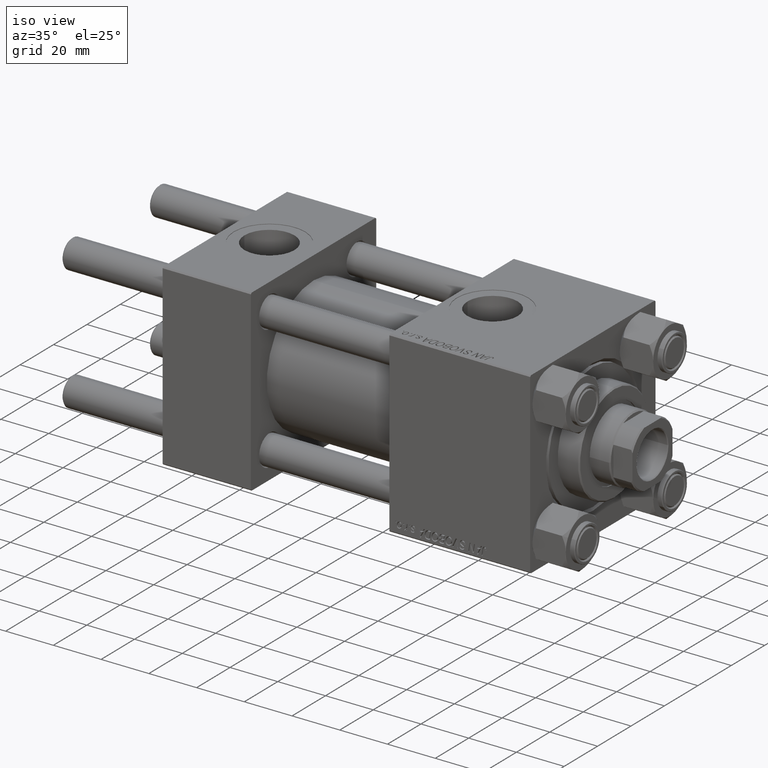
[diagram: clean part render]
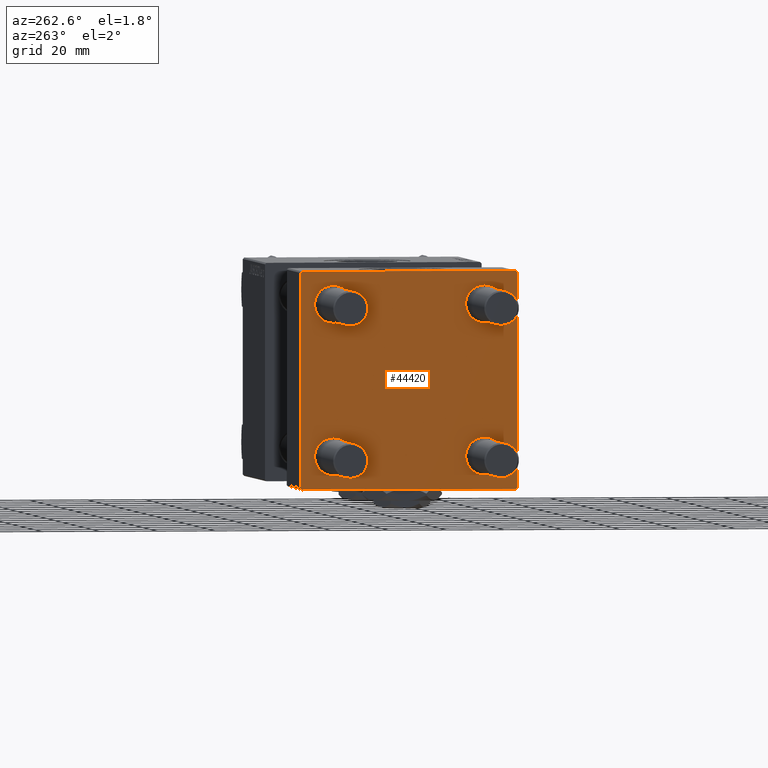
[diagram: tour spotlight — one face highlighted and labeled with its STEP entity id]
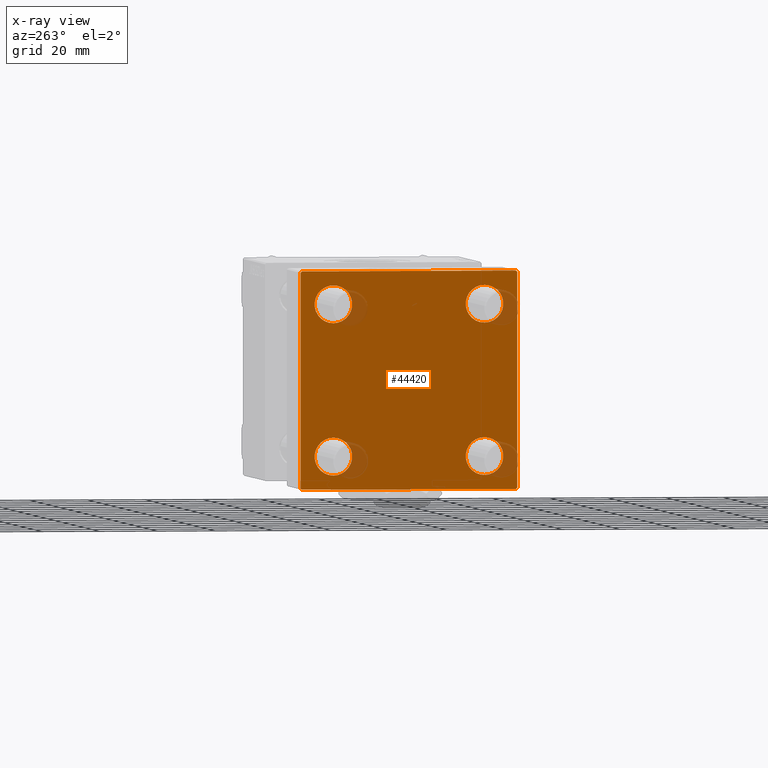
[diagram: x-ray of the same camera — body ghosted, this tour face saturated]
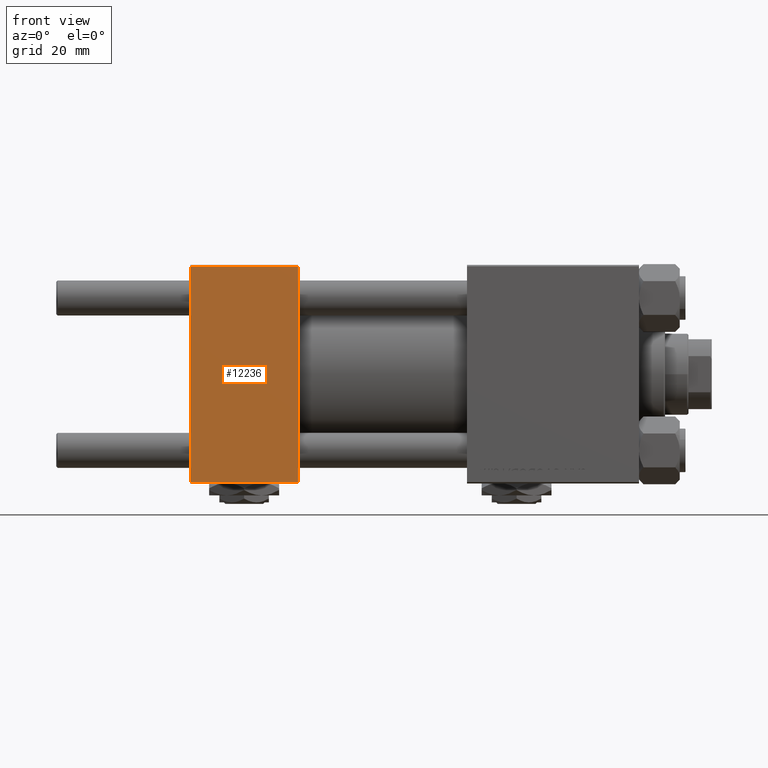
[diagram: tour spotlight — one face highlighted and labeled with its STEP entity id]
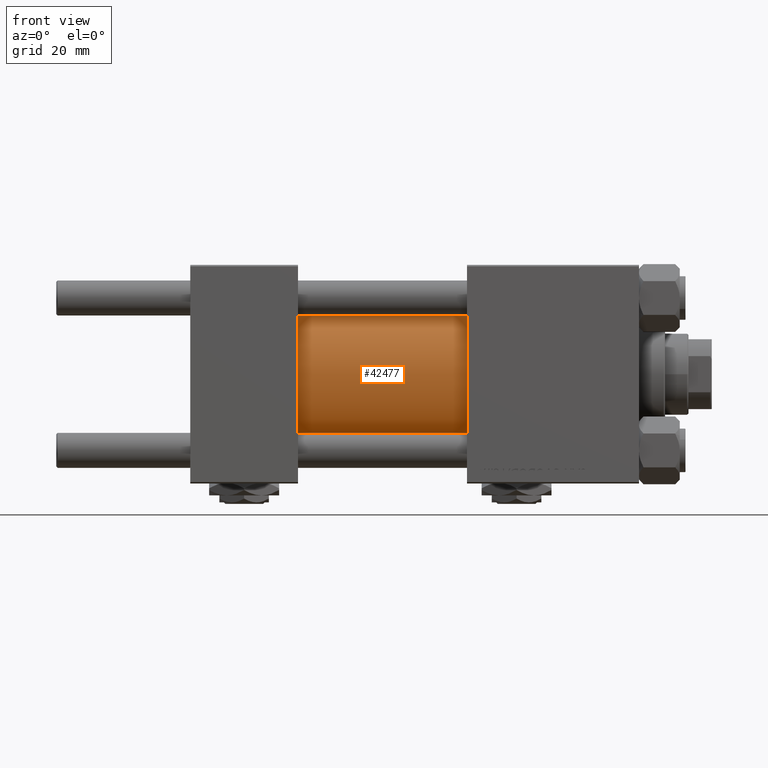
[diagram: tour spotlight — one face highlighted and labeled with its STEP entity id]
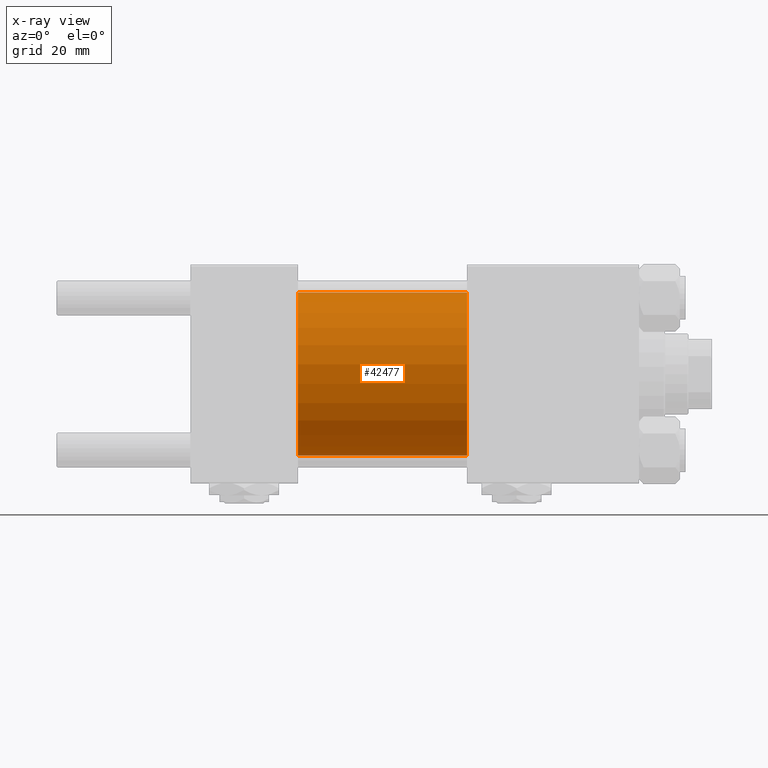
[diagram: x-ray of the same camera — body ghosted, this tour face saturated]
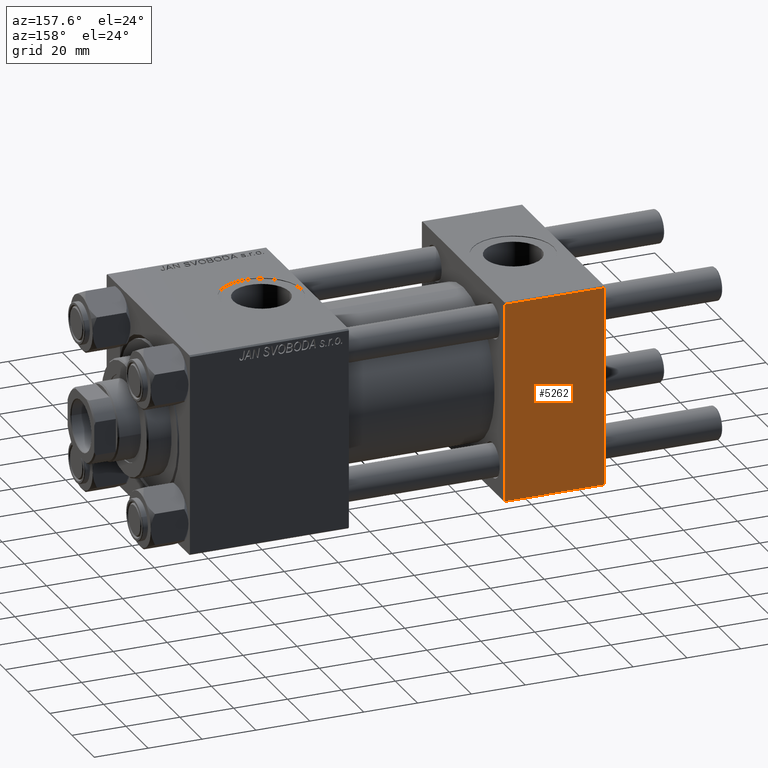
[diagram: tour spotlight — one face highlighted and labeled with its STEP entity id]
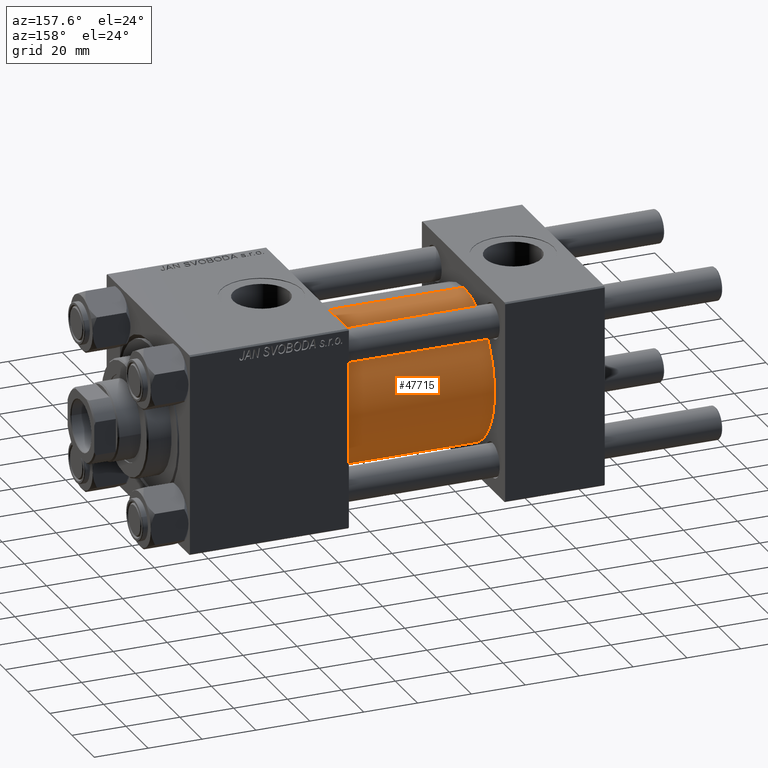
[diagram: tour spotlight — one face highlighted and labeled with its STEP entity id]
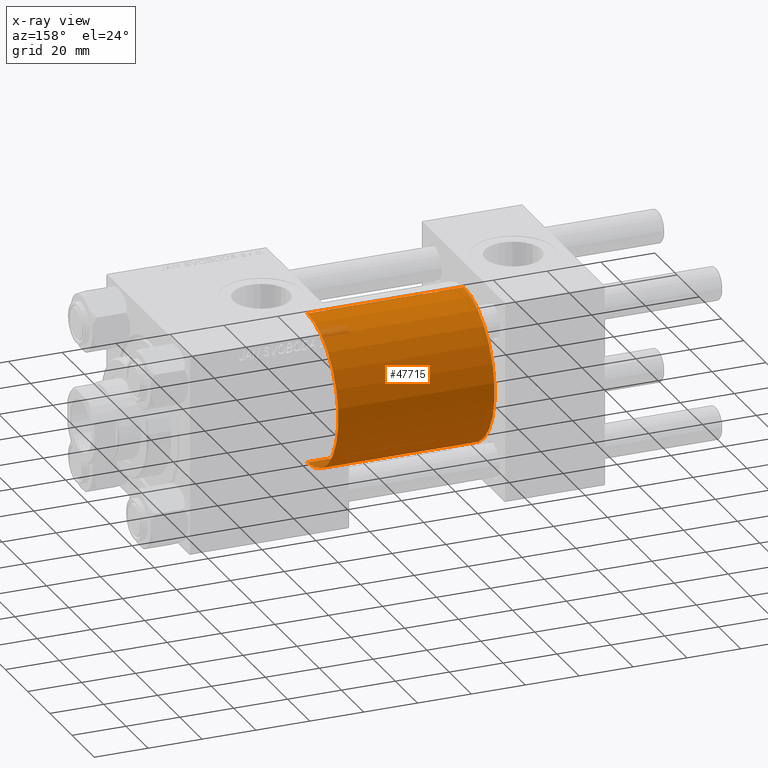
[diagram: x-ray of the same camera — body ghosted, this tour face saturated]
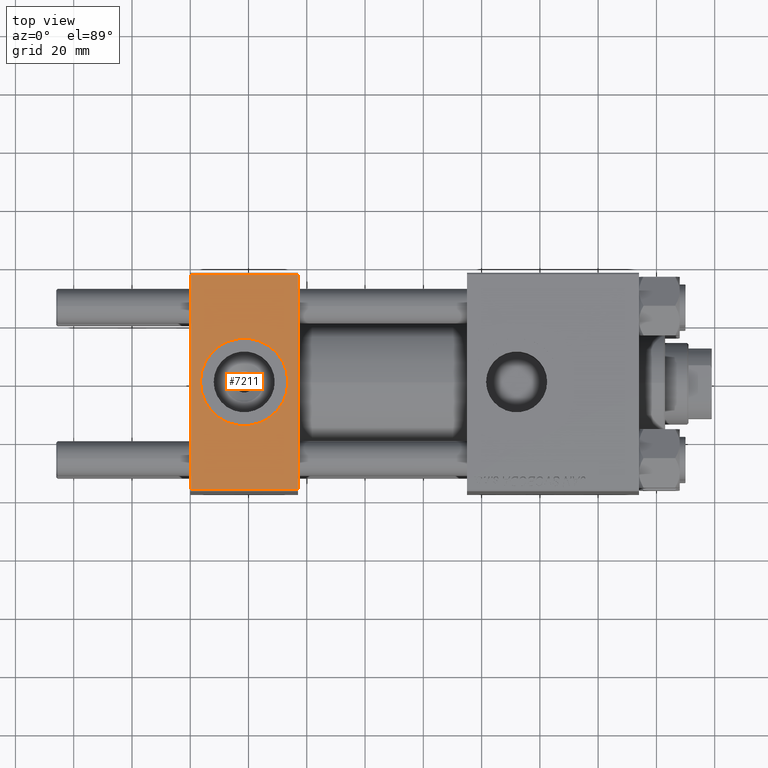
[diagram: tour spotlight — one face highlighted and labeled with its STEP entity id]
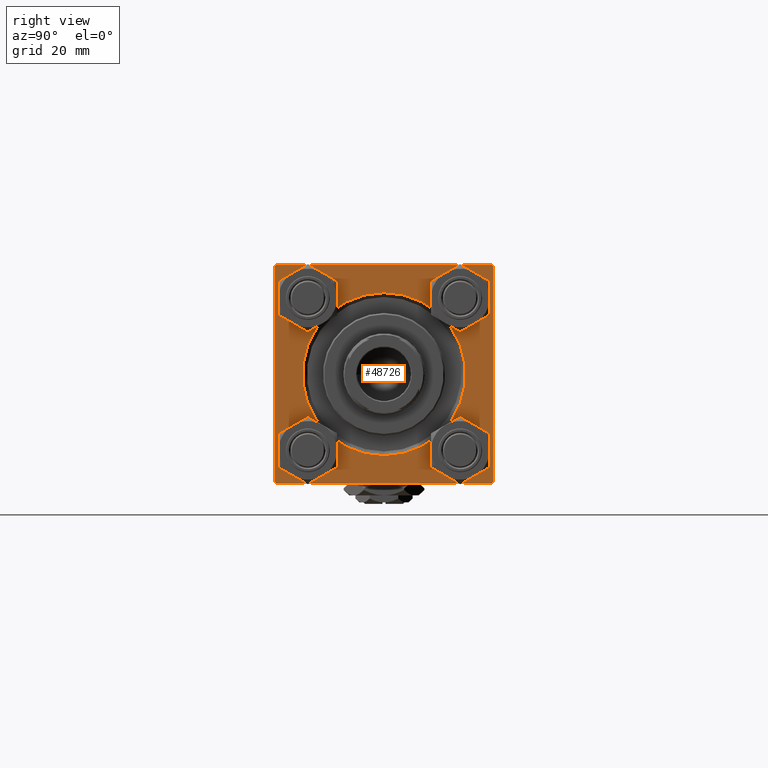
[diagram: tour spotlight — one face highlighted and labeled with its STEP entity id]
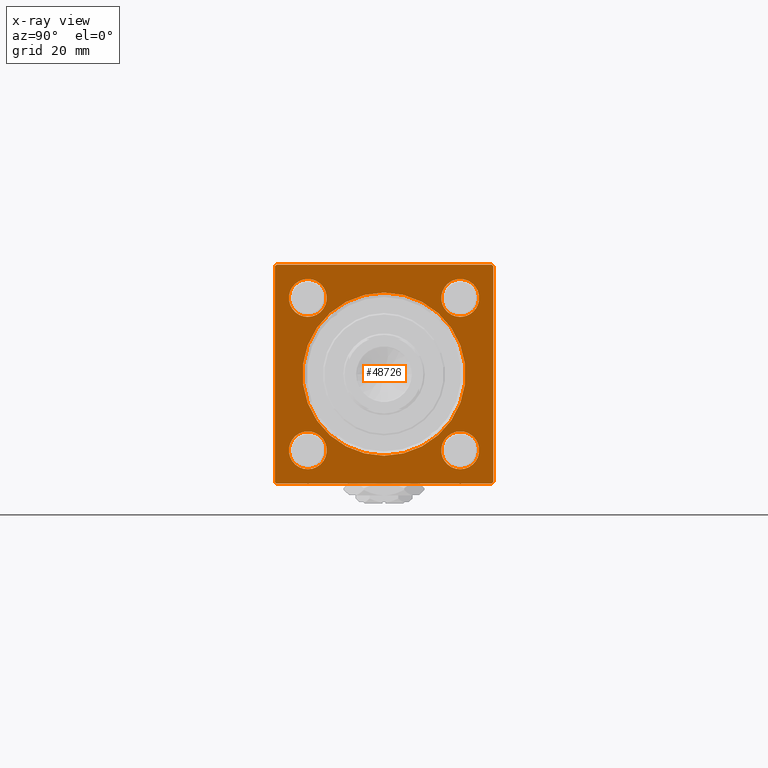
[diagram: x-ray of the same camera — body ghosted, this tour face saturated]
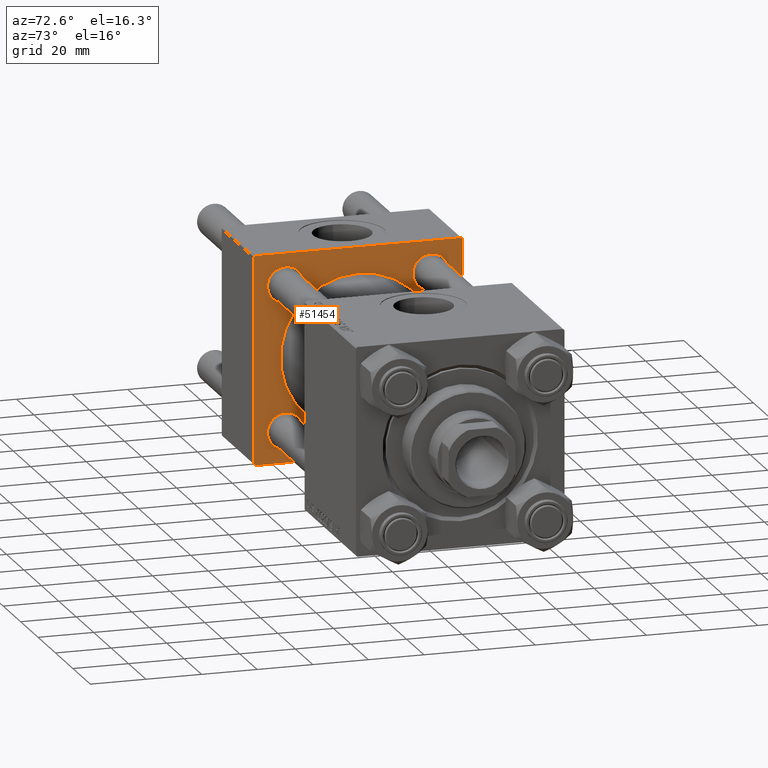
[diagram: tour spotlight — one face highlighted and labeled with its STEP entity id]
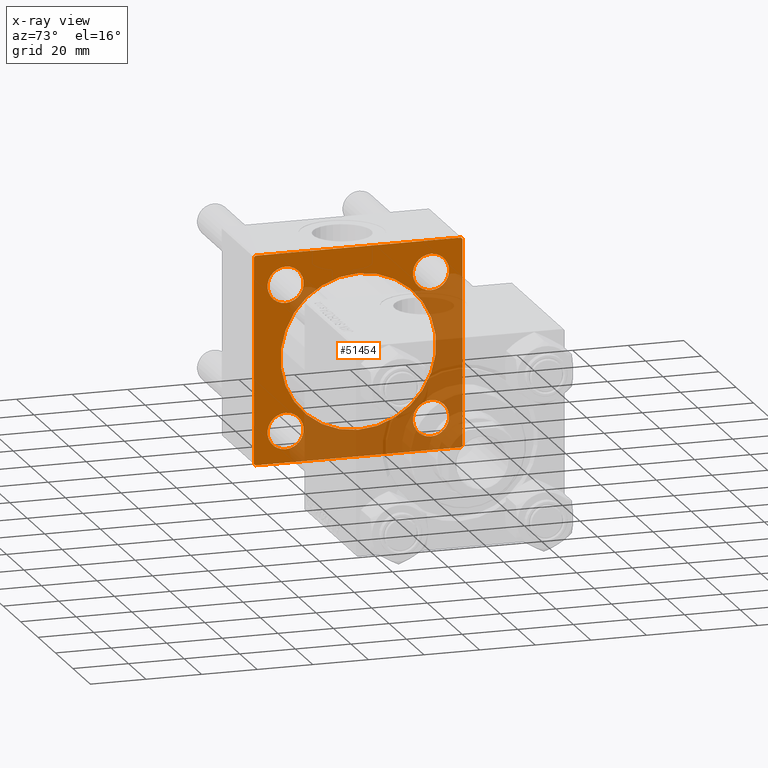
[diagram: x-ray of the same camera — body ghosted, this tour face saturated]
A machine part: a face-by-face anatomy tour. The part has 1233 B-rep faces; the first image is the clean iso view, then the 8 largest visible faces are spotlighted one at a time (largest first), each with its STEP entity span.

Face 1 — auxiliary view, entity #44420. An x-ray twin of the same camera follows (body ghosted, this face saturated) — the face is partly hidden behind the body. In plain terms, the highlighted planar face has unit normal (-1, 0, 0).
Definition (entity closure, byte-faithful):
#1008 = VECTOR ( 'NONE', #28788, 1000.000000000000114 ) ;
#1648 = FACE_BOUND ( 'NONE', #38337, .T. ) ;
#1858 = VERTEX_POINT ( 'NONE', #29882 ) ;
#2028 = DIRECTION ( 'NONE',  ( 0.000000000000000000, -1.000000000000000000, -9.251858538542972814E-17 ) ) ;
#2414 = DIRECTION ( 'NONE',  ( 1.000000000000000000, -0.000000000000000000, 0.000000000000000000 ) ) ;
#2642 = AXIS2_PLACEMENT_3D ( 'NONE', #21968, #10459, #6515 ) ;
#3246 = CIRCLE ( 'NONE', #32502, 6.500000000000015987 ) ;
#3314 = VERTEX_POINT ( 'NONE', #33052 ) ;
#3337 = DIRECTION ( 'NONE',  ( 0.000000000000000000, 0.000000000000000000, 1.000000000000000000 ) ) ;
#3969 = DIRECTION ( 'NONE',  ( 1.000000000000000000, -0.000000000000000000, 0.000000000000000000 ) ) ;
#4311 = CARTESIAN_POINT ( 'NONE',  ( 0.000000000000000000, -37.50000000000000711, 37.49999999999999289 ) ) ;
#4550 = CARTESIAN_POINT ( 'NONE',  ( 0.000000000000000000, -26.14999999999999147, 26.15000000000000924 ) ) ;
#4893 = EDGE_CURVE ( 'NONE', #43761, #32968, #3246, .T. ) ;
#5621 = VERTEX_POINT ( 'NONE', #9042 ) ;
#5709 = CARTESIAN_POINT ( 'NONE',  ( 0.000000000000000000, -26.14999999999999147, -19.64999999999999503 ) ) ;
#6094 = ORIENTED_EDGE ( 'NONE', *, *, #22260, .F. ) ;
#6203 = VERTEX_POINT ( 'NONE', #33980 ) ;
#6215 = LINE ( 'NONE', #37897, #39717 ) ;
#6339 = ORIENTED_EDGE ( 'NONE', *, *, #15380, .T. ) ;
#6438 = CARTESIAN_POINT ( 'NONE',  ( 0.000000000000000000, 37.49999999999999289, 37.00000000000000000 ) ) ;
#6454 = VERTEX_POINT ( 'NONE', #9054 ) ;
#6473 = LINE ( 'NONE', #18268, #44477 ) ;
#6515 = DIRECTION ( 'NONE',  ( 0.000000000000000000, 0.000000000000000000, 1.000000000000000000 ) ) ;
#6950 = AXIS2_PLACEMENT_3D ( 'NONE', #27533, #3969, #19184 ) ;
#7184 = ORIENTED_EDGE ( 'NONE', *, *, #50630, .T. ) ;
#7230 = VERTEX_POINT ( 'NONE', #45725 ) ;
#7327 = CARTESIAN_POINT ( 'NONE',  ( 0.000000000000000000, 0.000000000000000000, 0.000000000000000000 ) ) ;
#8186 = VERTEX_POINT ( 'NONE', #42853 ) ;
#8499 = VECTOR ( 'NONE', #49101, 1000.000000000000000 ) ;
#8918 = CARTESIAN_POINT ( 'NONE',  ( 0.000000000000000000, -26.14999999999999147, -32.65000000000002700 ) ) ;
#9042 = CARTESIAN_POINT ( 'NONE',  ( 0.000000000000000000, -37.50000000000000711, 36.99999999999999289 ) ) ;
#9054 = CARTESIAN_POINT ( 'NONE',  ( 0.000000000000000000, 36.99999999999997868, -37.50000000000000000 ) ) ;
#9376 = AXIS2_PLACEMENT_3D ( 'NONE', #7327, #17633, #35332 ) ;
#9915 = CARTESIAN_POINT ( 'NONE',  ( 0.000000000000000000, 26.14999999999999858, -26.15000000000000213 ) ) ;
#10322 = EDGE_CURVE ( 'NONE', #6454, #8186, #6215, .T. ) ;
#10438 = EDGE_LOOP ( 'NONE', ( #28482, #23347, #27128, #6339, #6094, #14707, #45878, #32337 ) ) ;
#10459 = DIRECTION ( 'NONE',  ( 1.000000000000000000, -0.000000000000000000, 0.000000000000000000 ) ) ;
#11994 = CIRCLE ( 'NONE', #37071, 6.500000000000023093 ) ;
#12054 = CARTESIAN_POINT ( 'NONE',  ( 0.000000000000000000, -26.14999999999999147, -26.15000000000000924 ) ) ;
#12404 = VERTEX_POINT ( 'NONE', #12467 ) ;
#12467 = CARTESIAN_POINT ( 'NONE',  ( 0.000000000000000000, -26.14999999999999147, 32.65000000000003411 ) ) ;
#12664 = DIRECTION ( 'NONE',  ( 0.000000000000000000, 0.000000000000000000, 1.000000000000000000 ) ) ;
#13623 = CARTESIAN_POINT ( 'NONE',  ( 0.000000000000000000, -37.50000000000000000, -37.00000000000003553 ) ) ;
#13767 = CIRCLE ( 'NONE', #29628, 6.500000000000023093 ) ;
#13968 = LINE ( 'NONE', #29917, #50021 ) ;
#14707 = ORIENTED_EDGE ( 'NONE', *, *, #48993, .T. ) ;
#14956 = CARTESIAN_POINT ( 'NONE',  ( 0.000000000000000000, -26.14999999999999147, 26.15000000000000924 ) ) ;
#15380 = EDGE_CURVE ( 'NONE', #8186, #42896, #44179, .T. ) ;
#15408 = DIRECTION ( 'NONE',  ( 0.000000000000000000, -0.7071067811865524577, 0.7071067811865426878 ) ) ;
#15941 = DIRECTION ( 'NONE',  ( 1.000000000000000000, -0.000000000000000000, 0.000000000000000000 ) ) ;
#16578 = ORIENTED_EDGE ( 'NONE', *, *, #4893, .T. ) ;
#16720 = EDGE_CURVE ( 'NONE', #36048, #6203, #39883, .T. ) ;
#16848 = CARTESIAN_POINT ( 'NONE',  ( 0.000000000000000000, 26.14999999999999858, -32.65000000000001990 ) ) ;
#16985 = CARTESIAN_POINT ( 'NONE',  ( 0.000000000000000000, -37.00000000000000711, 37.49999999999999289 ) ) ;
#17021 = DIRECTION ( 'NONE',  ( 1.000000000000000000, -0.000000000000000000, 0.000000000000000000 ) ) ;
#17600 = VERTEX_POINT ( 'NONE', #6438 ) ;
#17633 = DIRECTION ( 'NONE',  ( -1.000000000000000000, 0.000000000000000000, -0.000000000000000000 ) ) ;
#17847 = CIRCLE ( 'NONE', #20336, 6.500000000000023093 ) ;
#18268 = CARTESIAN_POINT ( 'NONE',  ( 0.000000000000000000, 37.24999999999998579, -37.24999999999998579 ) ) ;
#18786 = DIRECTION ( 'NONE',  ( -0.000000000000000000, -0.7071067811865474617, -0.7071067811865474617 ) ) ;
#19184 = DIRECTION ( 'NONE',  ( 0.000000000000000000, 0.000000000000000000, 1.000000000000000000 ) ) ;
#19335 = VERTEX_POINT ( 'NONE', #37304 ) ;
#19911 = LINE ( 'NONE', #32738, #1008 ) ;
#20087 = CARTESIAN_POINT ( 'NONE',  ( 0.000000000000000000, -26.14999999999999147, 19.64999999999999147 ) ) ;
#20336 = AXIS2_PLACEMENT_3D ( 'NONE', #4550, #36469, #12664 ) ;
#20416 = EDGE_CURVE ( 'NONE', #17600, #7230, #13968, .T. ) ;
#21546 = FACE_BOUND ( 'NONE', #49583, .T. ) ;
#21968 = CARTESIAN_POINT ( 'NONE',  ( 0.000000000000000000, -26.14999999999999147, -26.15000000000000924 ) ) ;
#22260 = EDGE_CURVE ( 'NONE', #5621, #42896, #47757, .T. ) ;
#22971 = LINE ( 'NONE', #25863, #49492 ) ;
#23347 = ORIENTED_EDGE ( 'NONE', *, *, #32119, .T. ) ;
#23561 = CIRCLE ( 'NONE', #37776, 6.500000000000023093 ) ;
#24070 = VECTOR ( 'NONE', #36247, 1000.000000000000000 ) ;
#24226 = VERTEX_POINT ( 'NONE', #20087 ) ;
#24589 = DIRECTION ( 'NONE',  ( 0.000000000000000000, 0.000000000000000000, 1.000000000000000000 ) ) ;
#25035 = LINE ( 'NONE', #40995, #8499 ) ;
#25744 = FACE_OUTER_BOUND ( 'NONE', #10438, .T. ) ;
#25863 = CARTESIAN_POINT ( 'NONE',  ( -0.000000000000000000, -37.25000000000000000, 37.25000000000000000 ) ) ;
#25872 = DIRECTION ( 'NONE',  ( 1.000000000000000000, -0.000000000000000000, 0.000000000000000000 ) ) ;
#26815 = ORIENTED_EDGE ( 'NONE', *, *, #39481, .T. ) ;
#27128 = ORIENTED_EDGE ( 'NONE', *, *, #10322, .T. ) ;
#27533 = CARTESIAN_POINT ( 'NONE',  ( 0.000000000000000000, 26.14999999999999858, -26.15000000000000213 ) ) ;
#27680 = ORIENTED_EDGE ( 'NONE', *, *, #30885, .T. ) ;
#28482 = ORIENTED_EDGE ( 'NONE', *, *, #20416, .T. ) ;
#28788 = DIRECTION ( 'NONE',  ( 0.000000000000000000, 0.7071067811865474617, -0.7071067811865474617 ) ) ;
#29628 = AXIS2_PLACEMENT_3D ( 'NONE', #14956, #2414, #43208 ) ;
#29702 = ORIENTED_EDGE ( 'NONE', *, *, #39187, .T. ) ;
#29882 = CARTESIAN_POINT ( 'NONE',  ( 0.000000000000000000, 26.14999999999999858, 19.64999999999998437 ) ) ;
#29917 = CARTESIAN_POINT ( 'NONE',  ( 0.000000000000000000, 37.49999999999999289, 37.50000000000000000 ) ) ;
#30304 = DIRECTION ( 'NONE',  ( -0.000000000000000000, 0.7071067811865474617, 0.7071067811865474617 ) ) ;
#30835 = EDGE_LOOP ( 'NONE', ( #16578, #27680 ) ) ;
#30885 = EDGE_CURVE ( 'NONE', #32968, #43761, #37764, .T. ) ;
#32119 = EDGE_CURVE ( 'NONE', #7230, #6454, #6473, .T. ) ;
#32337 = ORIENTED_EDGE ( 'NONE', *, *, #32944, .T. ) ;
#32502 = AXIS2_PLACEMENT_3D ( 'NONE', #12054, #17021, #36128 ) ;
#32738 = CARTESIAN_POINT ( 'NONE',  ( 0.000000000000000000, 37.24999999999999289, 37.24999999999999289 ) ) ;
#32944 = EDGE_CURVE ( 'NONE', #3314, #17600, #19911, .T. ) ;
#32968 = VERTEX_POINT ( 'NONE', #8918 ) ;
#33052 = CARTESIAN_POINT ( 'NONE',  ( 0.000000000000000000, 36.99999999999999289, 37.50000000000000000 ) ) ;
#33980 = CARTESIAN_POINT ( 'NONE',  ( 0.000000000000000000, 26.14999999999999858, -19.64999999999998792 ) ) ;
#34057 = VERTEX_POINT ( 'NONE', #16985 ) ;
#34059 = CARTESIAN_POINT ( 'NONE',  ( 0.000000000000000000, 26.14999999999999858, 26.15000000000000213 ) ) ;
#34803 = EDGE_LOOP ( 'NONE', ( #26815, #40809 ) ) ;
#35332 = DIRECTION ( 'NONE',  ( -0.000000000000000000, 0.000000000000000000, 1.000000000000000000 ) ) ;
#36048 = VERTEX_POINT ( 'NONE', #16848 ) ;
#36128 = DIRECTION ( 'NONE',  ( 0.000000000000000000, 0.000000000000000000, 1.000000000000000000 ) ) ;
#36247 = DIRECTION ( 'NONE',  ( 0.000000000000000000, 9.251858538542971581E-17, -1.000000000000000000 ) ) ;
#36359 = CARTESIAN_POINT ( 'NONE',  ( 0.000000000000000000, 26.14999999999999858, 26.15000000000000213 ) ) ;
#36469 = DIRECTION ( 'NONE',  ( 1.000000000000000000, -0.000000000000000000, 0.000000000000000000 ) ) ;
#37037 = CIRCLE ( 'NONE', #6950, 6.500000000000015987 ) ;
#37071 = AXIS2_PLACEMENT_3D ( 'NONE', #34059, #46083, #42171 ) ;
#37304 = CARTESIAN_POINT ( 'NONE',  ( 0.000000000000000000, 26.14999999999999858, 32.65000000000002700 ) ) ;
#37764 = CIRCLE ( 'NONE', #2642, 6.500000000000015987 ) ;
#37776 = AXIS2_PLACEMENT_3D ( 'NONE', #36359, #15941, #24589 ) ;
#37897 = CARTESIAN_POINT ( 'NONE',  ( 0.000000000000000000, 37.49999999999999289, -37.50000000000000000 ) ) ;
#38174 = ORIENTED_EDGE ( 'NONE', *, *, #16720, .T. ) ;
#38337 = EDGE_LOOP ( 'NONE', ( #7184, #38174 ) ) ;
#39011 = FACE_BOUND ( 'NONE', #30835, .T. ) ;
#39187 = EDGE_CURVE ( 'NONE', #24226, #12404, #17847, .T. ) ;
#39240 = CARTESIAN_POINT ( 'NONE',  ( 0.000000000000000000, -37.24999999999975842, -37.25000000000027001 ) ) ;
#39481 = EDGE_CURVE ( 'NONE', #19335, #1858, #11994, .T. ) ;
#39717 = VECTOR ( 'NONE', #2028, 1000.000000000000000 ) ;
#39883 = CIRCLE ( 'NONE', #44886, 6.500000000000015987 ) ;
#40809 = ORIENTED_EDGE ( 'NONE', *, *, #44555, .T. ) ;
#40995 = CARTESIAN_POINT ( 'NONE',  ( 0.000000000000000000, 37.49999999999999289, 37.50000000000000000 ) ) ;
#41562 = EDGE_CURVE ( 'NONE', #12404, #24226, #13767, .T. ) ;
#42171 = DIRECTION ( 'NONE',  ( 0.000000000000000000, 0.000000000000000000, 1.000000000000000000 ) ) ;
#42608 = ORIENTED_EDGE ( 'NONE', *, *, #41562, .T. ) ;
#42853 = CARTESIAN_POINT ( 'NONE',  ( 0.000000000000000000, -37.00000000000002132, -37.50000000000000711 ) ) ;
#42896 = VERTEX_POINT ( 'NONE', #13623 ) ;
#43182 = PLANE ( 'NONE',  #9376 ) ;
#43208 = DIRECTION ( 'NONE',  ( 0.000000000000000000, 0.000000000000000000, 1.000000000000000000 ) ) ;
#43761 = VERTEX_POINT ( 'NONE', #5709 ) ;
#43983 = VECTOR ( 'NONE', #15408, 1000.000000000000000 ) ;
#44179 = LINE ( 'NONE', #39240, #43983 ) ;
#44420 = ADVANCED_FACE ( 'NONE', ( #21546, #39011, #1648, #46855, #25744 ), #43182, .T. ) ;
#44477 = VECTOR ( 'NONE', #18786, 1000.000000000000114 ) ;
#44555 = EDGE_CURVE ( 'NONE', #1858, #19335, #23561, .T. ) ;
#44886 = AXIS2_PLACEMENT_3D ( 'NONE', #9915, #25872, #3337 ) ;
#45725 = CARTESIAN_POINT ( 'NONE',  ( 0.000000000000000000, 37.49999999999999289, -36.99999999999998579 ) ) ;
#45878 = ORIENTED_EDGE ( 'NONE', *, *, #47795, .F. ) ;
#45888 = DIRECTION ( 'NONE',  ( 0.000000000000000000, 0.000000000000000000, -1.000000000000000000 ) ) ;
#46083 = DIRECTION ( 'NONE',  ( 1.000000000000000000, -0.000000000000000000, 0.000000000000000000 ) ) ;
#46855 = FACE_BOUND ( 'NONE', #34803, .T. ) ;
#47757 = LINE ( 'NONE', #4311, #24070 ) ;
#47795 = EDGE_CURVE ( 'NONE', #3314, #34057, #25035, .T. ) ;
#48993 = EDGE_CURVE ( 'NONE', #5621, #34057, #22971, .T. ) ;
#49101 = DIRECTION ( 'NONE',  ( 0.000000000000000000, -1.000000000000000000, -9.251858538542971581E-17 ) ) ;
#49492 = VECTOR ( 'NONE', #30304, 1000.000000000000114 ) ;
#49583 = EDGE_LOOP ( 'NONE', ( #42608, #29702 ) ) ;
#50021 = VECTOR ( 'NONE', #45888, 1000.000000000000000 ) ;
#50630 = EDGE_CURVE ( 'NONE', #6203, #36048, #37037, .T. ) ;

Face 2 — front view, entity #12236. In plain terms, the highlighted planar face has unit normal (0, 1, 0).
Definition (entity closure, byte-faithful):
#115 = LINE ( 'NONE', #30075, #37685 ) ;
#3431 = CARTESIAN_POINT ( 'NONE',  ( 37.00000000000000000, -37.50000000000000711, 37.49999999999999289 ) ) ;
#4311 = CARTESIAN_POINT ( 'NONE',  ( 0.000000000000000000, -37.50000000000000711, 37.49999999999999289 ) ) ;
#5621 = VERTEX_POINT ( 'NONE', #9042 ) ;
#9042 = CARTESIAN_POINT ( 'NONE',  ( 0.000000000000000000, -37.50000000000000711, 36.99999999999999289 ) ) ;
#10355 = EDGE_LOOP ( 'NONE', ( #15536, #35169, #28844, #51044 ) ) ;
#11195 = DIRECTION ( 'NONE',  ( -0.000000000000000000, 1.000000000000000000, 9.251858538542971581E-17 ) ) ;
#11294 = DIRECTION ( 'NONE',  ( 0.000000000000000000, 9.251858538542971581E-17, -1.000000000000000000 ) ) ;
#11951 = FACE_OUTER_BOUND ( 'NONE', #10355, .T. ) ;
#12236 = ADVANCED_FACE ( 'NONE', ( #11951 ), #31840, .F. ) ;
#13623 = CARTESIAN_POINT ( 'NONE',  ( 0.000000000000000000, -37.50000000000000000, -37.00000000000003553 ) ) ;
#14959 = EDGE_CURVE ( 'NONE', #43595, #44405, #34851, .T. ) ;
#15536 = ORIENTED_EDGE ( 'NONE', *, *, #22260, .T. ) ;
#19796 = CARTESIAN_POINT ( 'NONE',  ( 37.00000000000000000, -37.50000000000000711, 37.49999999999999289 ) ) ;
#22260 = EDGE_CURVE ( 'NONE', #5621, #42896, #47757, .T. ) ;
#23899 = AXIS2_PLACEMENT_3D ( 'NONE', #19796, #11195, #51739 ) ;
#24070 = VECTOR ( 'NONE', #36247, 1000.000000000000000 ) ;
#25853 = LINE ( 'NONE', #41817, #46980 ) ;
#26706 = CARTESIAN_POINT ( 'NONE',  ( 37.00000000000000000, -37.50000000000000711, 36.99999999999999289 ) ) ;
#28533 = EDGE_CURVE ( 'NONE', #42896, #44405, #115, .T. ) ;
#28844 = ORIENTED_EDGE ( 'NONE', *, *, #14959, .F. ) ;
#30075 = CARTESIAN_POINT ( 'NONE',  ( 37.00000000000000000, -37.50000000000000000, -37.00000000000003553 ) ) ;
#31568 = DIRECTION ( 'NONE',  ( -1.000000000000000000, 0.000000000000000000, 0.000000000000000000 ) ) ;
#31840 = PLANE ( 'NONE',  #23899 ) ;
#32179 = EDGE_CURVE ( 'NONE', #43595, #5621, #25853, .T. ) ;
#34823 = CARTESIAN_POINT ( 'NONE',  ( 37.00000000000000000, -37.50000000000000000, -37.00000000000003553 ) ) ;
#34851 = LINE ( 'NONE', #3431, #46509 ) ;
#35169 = ORIENTED_EDGE ( 'NONE', *, *, #28533, .T. ) ;
#36247 = DIRECTION ( 'NONE',  ( 0.000000000000000000, 9.251858538542971581E-17, -1.000000000000000000 ) ) ;
#37685 = VECTOR ( 'NONE', #46038, 1000.000000000000000 ) ;
#41817 = CARTESIAN_POINT ( 'NONE',  ( 37.00000000000000000, -37.50000000000000711, 36.99999999999999289 ) ) ;
#42896 = VERTEX_POINT ( 'NONE', #13623 ) ;
#43595 = VERTEX_POINT ( 'NONE', #26706 ) ;
#44405 = VERTEX_POINT ( 'NONE', #34823 ) ;
#46038 = DIRECTION ( 'NONE',  ( 1.000000000000000000, 0.000000000000000000, 0.000000000000000000 ) ) ;
#46509 = VECTOR ( 'NONE', #11294, 1000.000000000000000 ) ;
#46980 = VECTOR ( 'NONE', #31568, 1000.000000000000000 ) ;
#47757 = LINE ( 'NONE', #4311, #24070 ) ;
#51044 = ORIENTED_EDGE ( 'NONE', *, *, #32179, .T. ) ;
#51739 = DIRECTION ( 'NONE',  ( 0.000000000000000000, -9.251858538542971581E-17, 1.000000000000000000 ) ) ;

Face 3 — front view, entity #42477. An x-ray twin of the same camera follows (body ghosted, this face saturated) — the face is partly hidden behind the body. In plain terms, the highlighted cylindrical surface (partial cylindrical patch) has radius 28 mm, axis along (-1, -0, -0).
Definition (entity closure, byte-faithful):
#2266 = ORIENTED_EDGE ( 'NONE', *, *, #37284, .F. ) ;
#2578 = VERTEX_POINT ( 'NONE', #44038 ) ;
#3869 = DIRECTION ( 'NONE',  ( 1.000000000000000000, 0.000000000000000000, 0.000000000000000000 ) ) ;
#4074 = DIRECTION ( 'NONE',  ( 0.000000000000000000, 0.000000000000000000, 1.000000000000000000 ) ) ;
#5612 = LINE ( 'NONE', #29427, #40742 ) ;
#7010 = EDGE_CURVE ( 'NONE', #43350, #2578, #36713, .T. ) ;
#7500 = DIRECTION ( 'NONE',  ( -1.000000000000000000, -0.000000000000000000, -0.000000000000000000 ) ) ;
#8437 = EDGE_CURVE ( 'NONE', #23703, #23971, #37498, .T. ) ;
#14173 = AXIS2_PLACEMENT_3D ( 'NONE', #15908, #3869, #23512 ) ;
#15908 = CARTESIAN_POINT ( 'NONE',  ( 95.00000000000000000, 0.000000000000000000, 0.000000000000000000 ) ) ;
#16896 = CARTESIAN_POINT ( 'NONE',  ( 37.00000000000000000, 0.000000000000000000, 0.000000000000000000 ) ) ;
#17145 = DIRECTION ( 'NONE',  ( -1.000000000000000000, -0.000000000000000000, -0.000000000000000000 ) ) ;
#17371 = LINE ( 'NONE', #38318, #38702 ) ;
#17907 = DIRECTION ( 'NONE',  ( -1.000000000000000000, -0.000000000000000000, -0.000000000000000000 ) ) ;
#18331 = EDGE_CURVE ( 'NONE', #43350, #23703, #5612, .T. ) ;
#18967 = DIRECTION ( 'NONE',  ( 0.000000000000000000, 0.000000000000000000, 1.000000000000000000 ) ) ;
#22861 = ORIENTED_EDGE ( 'NONE', *, *, #7010, .F. ) ;
#23512 = DIRECTION ( 'NONE',  ( 0.000000000000000000, 0.000000000000000000, -1.000000000000000000 ) ) ;
#23703 = VERTEX_POINT ( 'NONE', #25451 ) ;
#23971 = VERTEX_POINT ( 'NONE', #44230 ) ;
#25451 = CARTESIAN_POINT ( 'NONE',  ( 37.00000000000000000, 0.000000000000000000, 28.00000000000000000 ) ) ;
#25929 = AXIS2_PLACEMENT_3D ( 'NONE', #16896, #32865, #18967 ) ;
#27382 = FACE_OUTER_BOUND ( 'NONE', #28076, .T. ) ;
#28076 = EDGE_LOOP ( 'NONE', ( #2266, #22861, #42458, #46863 ) ) ;
#29427 = CARTESIAN_POINT ( 'NONE',  ( 95.00000000000000000, 0.000000000000000000, 28.00000000000000000 ) ) ;
#31565 = CARTESIAN_POINT ( 'NONE',  ( 95.00000000000000000, 0.000000000000000000, 0.000000000000000000 ) ) ;
#32865 = DIRECTION ( 'NONE',  ( 1.000000000000000000, -0.000000000000000000, 0.000000000000000000 ) ) ;
#36713 = CIRCLE ( 'NONE', #14173, 28.00000000000000000 ) ;
#37284 = EDGE_CURVE ( 'NONE', #2578, #23971, #17371, .T. ) ;
#37498 = CIRCLE ( 'NONE', #25929, 28.00000000000000000 ) ;
#37715 = CARTESIAN_POINT ( 'NONE',  ( 95.00000000000000000, 0.000000000000000000, 28.00000000000000000 ) ) ;
#38318 = CARTESIAN_POINT ( 'NONE',  ( 95.00000000000000000, 3.429011037612588487E-15, -28.00000000000000000 ) ) ;
#38702 = VECTOR ( 'NONE', #17907, 1000.000000000000000 ) ;
#39932 = CYLINDRICAL_SURFACE ( 'NONE', #43824, 28.00000000000000000 ) ;
#40742 = VECTOR ( 'NONE', #17145, 1000.000000000000000 ) ;
#42458 = ORIENTED_EDGE ( 'NONE', *, *, #18331, .T. ) ;
#42477 = ADVANCED_FACE ( 'NONE', ( #27382 ), #39932, .T. ) ;
#43350 = VERTEX_POINT ( 'NONE', #37715 ) ;
#43824 = AXIS2_PLACEMENT_3D ( 'NONE', #31565, #7500, #4074 ) ;
#44038 = CARTESIAN_POINT ( 'NONE',  ( 95.00000000000000000, 3.429011037612588487E-15, -28.00000000000000000 ) ) ;
#44230 = CARTESIAN_POINT ( 'NONE',  ( 37.00000000000000000, 3.429011037612588487E-15, -28.00000000000000000 ) ) ;
#46863 = ORIENTED_EDGE ( 'NONE', *, *, #8437, .T. ) ;

Face 4 — auxiliary view, entity #5262. In plain terms, the highlighted planar face has unit normal (0, 1, 0).
Definition (entity closure, byte-faithful):
#467 = ORIENTED_EDGE ( 'NONE', *, *, #40617, .T. ) ;
#626 = ORIENTED_EDGE ( 'NONE', *, *, #28313, .T. ) ;
#894 = VERTEX_POINT ( 'NONE', #31796 ) ;
#1143 = VECTOR ( 'NONE', #37473, 1000.000000000000000 ) ;
#2036 = DIRECTION ( 'NONE',  ( -0.000000000000000000, 1.000000000000000000, 0.000000000000000000 ) ) ;
#5262 = ADVANCED_FACE ( 'NONE', ( #22186 ), #25588, .T. ) ;
#5285 = CARTESIAN_POINT ( 'NONE',  ( 37.00000000000000000, 37.49999999999999289, 37.50000000000000000 ) ) ;
#6438 = CARTESIAN_POINT ( 'NONE',  ( 0.000000000000000000, 37.49999999999999289, 37.00000000000000000 ) ) ;
#7230 = VERTEX_POINT ( 'NONE', #45725 ) ;
#8889 = DIRECTION ( 'NONE',  ( 1.000000000000000000, 0.000000000000000000, 0.000000000000000000 ) ) ;
#10992 = VECTOR ( 'NONE', #28798, 1000.000000000000000 ) ;
#13902 = CARTESIAN_POINT ( 'NONE',  ( 37.00000000000000000, 37.49999999999999289, -36.99999999999998579 ) ) ;
#13968 = LINE ( 'NONE', #29917, #50021 ) ;
#15693 = CARTESIAN_POINT ( 'NONE',  ( 37.00000000000000000, 37.49999999999999289, 37.00000000000000000 ) ) ;
#17600 = VERTEX_POINT ( 'NONE', #6438 ) ;
#18010 = DIRECTION ( 'NONE',  ( 0.000000000000000000, -0.000000000000000000, 1.000000000000000000 ) ) ;
#20416 = EDGE_CURVE ( 'NONE', #17600, #7230, #13968, .T. ) ;
#22186 = FACE_OUTER_BOUND ( 'NONE', #48299, .T. ) ;
#25588 = PLANE ( 'NONE',  #26641 ) ;
#26641 = AXIS2_PLACEMENT_3D ( 'NONE', #46004, #2036, #18010 ) ;
#28313 = EDGE_CURVE ( 'NONE', #17600, #894, #51564, .T. ) ;
#28395 = VECTOR ( 'NONE', #8889, 1000.000000000000000 ) ;
#28798 = DIRECTION ( 'NONE',  ( -1.000000000000000000, 0.000000000000000000, 0.000000000000000000 ) ) ;
#28828 = LINE ( 'NONE', #5285, #1143 ) ;
#29917 = CARTESIAN_POINT ( 'NONE',  ( 0.000000000000000000, 37.49999999999999289, 37.50000000000000000 ) ) ;
#31796 = CARTESIAN_POINT ( 'NONE',  ( 37.00000000000000000, 37.49999999999999289, 37.00000000000000000 ) ) ;
#33793 = LINE ( 'NONE', #13902, #10992 ) ;
#37473 = DIRECTION ( 'NONE',  ( 0.000000000000000000, 0.000000000000000000, -1.000000000000000000 ) ) ;
#38598 = ORIENTED_EDGE ( 'NONE', *, *, #20416, .F. ) ;
#40617 = EDGE_CURVE ( 'NONE', #894, #43559, #28828, .T. ) ;
#43379 = EDGE_CURVE ( 'NONE', #43559, #7230, #33793, .T. ) ;
#43559 = VERTEX_POINT ( 'NONE', #46074 ) ;
#45725 = CARTESIAN_POINT ( 'NONE',  ( 0.000000000000000000, 37.49999999999999289, -36.99999999999998579 ) ) ;
#45888 = DIRECTION ( 'NONE',  ( 0.000000000000000000, 0.000000000000000000, -1.000000000000000000 ) ) ;
#46004 = CARTESIAN_POINT ( 'NONE',  ( 37.00000000000000000, 37.49999999999999289, 37.50000000000000000 ) ) ;
#46074 = CARTESIAN_POINT ( 'NONE',  ( 37.00000000000000000, 37.49999999999999289, -36.99999999999998579 ) ) ;
#48299 = EDGE_LOOP ( 'NONE', ( #467, #49116, #38598, #626 ) ) ;
#49116 = ORIENTED_EDGE ( 'NONE', *, *, #43379, .T. ) ;
#50021 = VECTOR ( 'NONE', #45888, 1000.000000000000000 ) ;
#51564 = LINE ( 'NONE', #15693, #28395 ) ;

Face 5 — auxiliary view, entity #47715. An x-ray twin of the same camera follows (body ghosted, this face saturated) — the face is partly hidden behind the body. In plain terms, the highlighted cylindrical surface (partial cylindrical patch) has radius 28 mm, axis along (-1, -0, -0).
Definition (entity closure, byte-faithful):
#2578 = VERTEX_POINT ( 'NONE', #44038 ) ;
#3350 = CIRCLE ( 'NONE', #8380, 28.00000000000000000 ) ;
#5216 = CARTESIAN_POINT ( 'NONE',  ( 95.00000000000000000, 0.000000000000000000, 0.000000000000000000 ) ) ;
#5612 = LINE ( 'NONE', #29427, #40742 ) ;
#8380 = AXIS2_PLACEMENT_3D ( 'NONE', #5216, #29023, #21432 ) ;
#15850 = AXIS2_PLACEMENT_3D ( 'NONE', #20848, #44152, #49103 ) ;
#17145 = DIRECTION ( 'NONE',  ( -1.000000000000000000, -0.000000000000000000, -0.000000000000000000 ) ) ;
#17371 = LINE ( 'NONE', #38318, #38702 ) ;
#17907 = DIRECTION ( 'NONE',  ( -1.000000000000000000, -0.000000000000000000, -0.000000000000000000 ) ) ;
#18331 = EDGE_CURVE ( 'NONE', #43350, #23703, #5612, .T. ) ;
#19568 = DIRECTION ( 'NONE',  ( -1.000000000000000000, -0.000000000000000000, -0.000000000000000000 ) ) ;
#20319 = ORIENTED_EDGE ( 'NONE', *, *, #37284, .T. ) ;
#20848 = CARTESIAN_POINT ( 'NONE',  ( 37.00000000000000000, 0.000000000000000000, 0.000000000000000000 ) ) ;
#21432 = DIRECTION ( 'NONE',  ( 0.000000000000000000, 0.000000000000000000, -1.000000000000000000 ) ) ;
#23703 = VERTEX_POINT ( 'NONE', #25451 ) ;
#23971 = VERTEX_POINT ( 'NONE', #44230 ) ;
#24268 = CARTESIAN_POINT ( 'NONE',  ( 95.00000000000000000, 0.000000000000000000, 0.000000000000000000 ) ) ;
#24694 = ORIENTED_EDGE ( 'NONE', *, *, #28324, .F. ) ;
#25451 = CARTESIAN_POINT ( 'NONE',  ( 37.00000000000000000, 0.000000000000000000, 28.00000000000000000 ) ) ;
#26161 = EDGE_LOOP ( 'NONE', ( #24694, #20319, #38291, #39766 ) ) ;
#26898 = AXIS2_PLACEMENT_3D ( 'NONE', #24268, #19568, #31858 ) ;
#27291 = EDGE_CURVE ( 'NONE', #23971, #23703, #37608, .T. ) ;
#28324 = EDGE_CURVE ( 'NONE', #2578, #43350, #3350, .T. ) ;
#29023 = DIRECTION ( 'NONE',  ( 1.000000000000000000, 0.000000000000000000, 0.000000000000000000 ) ) ;
#29427 = CARTESIAN_POINT ( 'NONE',  ( 95.00000000000000000, 0.000000000000000000, 28.00000000000000000 ) ) ;
#31598 = CYLINDRICAL_SURFACE ( 'NONE', #26898, 28.00000000000000000 ) ;
#31858 = DIRECTION ( 'NONE',  ( 0.000000000000000000, 0.000000000000000000, 1.000000000000000000 ) ) ;
#37284 = EDGE_CURVE ( 'NONE', #2578, #23971, #17371, .T. ) ;
#37608 = CIRCLE ( 'NONE', #15850, 28.00000000000000000 ) ;
#37715 = CARTESIAN_POINT ( 'NONE',  ( 95.00000000000000000, 0.000000000000000000, 28.00000000000000000 ) ) ;
#38291 = ORIENTED_EDGE ( 'NONE', *, *, #27291, .T. ) ;
#38318 = CARTESIAN_POINT ( 'NONE',  ( 95.00000000000000000, 3.429011037612588487E-15, -28.00000000000000000 ) ) ;
#38702 = VECTOR ( 'NONE', #17907, 1000.000000000000000 ) ;
#39766 = ORIENTED_EDGE ( 'NONE', *, *, #18331, .F. ) ;
#40742 = VECTOR ( 'NONE', #17145, 1000.000000000000000 ) ;
#43350 = VERTEX_POINT ( 'NONE', #37715 ) ;
#43637 = FACE_OUTER_BOUND ( 'NONE', #26161, .T. ) ;
#44038 = CARTESIAN_POINT ( 'NONE',  ( 95.00000000000000000, 3.429011037612588487E-15, -28.00000000000000000 ) ) ;
#44152 = DIRECTION ( 'NONE',  ( 1.000000000000000000, -0.000000000000000000, 0.000000000000000000 ) ) ;
#44230 = CARTESIAN_POINT ( 'NONE',  ( 37.00000000000000000, 3.429011037612588487E-15, -28.00000000000000000 ) ) ;
#47715 = ADVANCED_FACE ( 'NONE', ( #43637 ), #31598, .T. ) ;
#49103 = DIRECTION ( 'NONE',  ( 0.000000000000000000, 0.000000000000000000, 1.000000000000000000 ) ) ;

Face 6 — top view, entity #7211. In plain terms, the highlighted planar face has unit normal (0, 0, -1).
Definition (entity closure, byte-faithful):
#99 = EDGE_CURVE ( 'NONE', #42354, #25216, #50704, .T. ) ;
#2030 = CARTESIAN_POINT ( 'NONE',  ( 3.499999999999997780, -3.367200229209391300E-15, 37.50000000000000000 ) ) ;
#2377 = ORIENTED_EDGE ( 'NONE', *, *, #47795, .T. ) ;
#2466 = EDGE_LOOP ( 'NONE', ( #25833, #6514 ) ) ;
#3185 = CARTESIAN_POINT ( 'NONE',  ( 37.00000000000000000, 37.49999999999999289, 37.50000000000000000 ) ) ;
#3314 = VERTEX_POINT ( 'NONE', #33052 ) ;
#4076 = CARTESIAN_POINT ( 'NONE',  ( 37.00000000000000000, -37.00000000000000711, 37.49999999999999289 ) ) ;
#6465 = EDGE_CURVE ( 'NONE', #25216, #42354, #12472, .T. ) ;
#6514 = ORIENTED_EDGE ( 'NONE', *, *, #99, .F. ) ;
#7211 = ADVANCED_FACE ( 'NONE', ( #17467, #29231 ), #40510, .F. ) ;
#8499 = VECTOR ( 'NONE', #49101, 1000.000000000000000 ) ;
#9360 = DIRECTION ( 'NONE',  ( 0.000000000000000000, 9.251858538542971581E-17, -1.000000000000000000 ) ) ;
#9924 = LINE ( 'NONE', #12806, #24421 ) ;
#10695 = ORIENTED_EDGE ( 'NONE', *, *, #34738, .F. ) ;
#11045 = LINE ( 'NONE', #35108, #42332 ) ;
#12472 = CIRCLE ( 'NONE', #51743, 15.00000000000000355 ) ;
#12806 = CARTESIAN_POINT ( 'NONE',  ( 0.000000000000000000, 36.99999999999999289, 37.50000000000000000 ) ) ;
#14973 = EDGE_CURVE ( 'NONE', #34057, #32213, #11045, .T. ) ;
#15569 = DIRECTION ( 'NONE',  ( 0.000000000000000000, 0.000000000000000000, 1.000000000000000000 ) ) ;
#16985 = CARTESIAN_POINT ( 'NONE',  ( 0.000000000000000000, -37.00000000000000711, 37.49999999999999289 ) ) ;
#17467 = FACE_BOUND ( 'NONE', #2466, .T. ) ;
#17734 = DIRECTION ( 'NONE',  ( 0.000000000000000000, 1.000000000000000000, 9.251858538542971581E-17 ) ) ;
#19406 = DIRECTION ( 'NONE',  ( 0.000000000000000000, -1.000000000000000000, -9.251858538542971581E-17 ) ) ;
#21079 = DIRECTION ( 'NONE',  ( 0.000000000000000000, 0.000000000000000000, 1.000000000000000000 ) ) ;
#22638 = VERTEX_POINT ( 'NONE', #51642 ) ;
#24421 = VECTOR ( 'NONE', #28748, 1000.000000000000000 ) ;
#25035 = LINE ( 'NONE', #40995, #8499 ) ;
#25216 = VERTEX_POINT ( 'NONE', #32862 ) ;
#25833 = ORIENTED_EDGE ( 'NONE', *, *, #6465, .F. ) ;
#27245 = DIRECTION ( 'NONE',  ( 1.000000000000000000, 0.000000000000000000, 0.000000000000000000 ) ) ;
#28109 = AXIS2_PLACEMENT_3D ( 'NONE', #51439, #15569, #34707 ) ;
#28748 = DIRECTION ( 'NONE',  ( -1.000000000000000000, 0.000000000000000000, 0.000000000000000000 ) ) ;
#29231 = FACE_OUTER_BOUND ( 'NONE', #35962, .T. ) ;
#31783 = ORIENTED_EDGE ( 'NONE', *, *, #44685, .T. ) ;
#32213 = VERTEX_POINT ( 'NONE', #4076 ) ;
#32862 = CARTESIAN_POINT ( 'NONE',  ( 33.50000000000000000, -5.204170427930421283E-15, 37.50000000000000000 ) ) ;
#33052 = CARTESIAN_POINT ( 'NONE',  ( 0.000000000000000000, 36.99999999999999289, 37.50000000000000000 ) ) ;
#34057 = VERTEX_POINT ( 'NONE', #16985 ) ;
#34707 = DIRECTION ( 'NONE',  ( 1.000000000000000000, 0.000000000000000000, 0.000000000000000000 ) ) ;
#34738 = EDGE_CURVE ( 'NONE', #22638, #32213, #39557, .T. ) ;
#35108 = CARTESIAN_POINT ( 'NONE',  ( 37.00000000000000000, -37.00000000000000711, 37.49999999999999289 ) ) ;
#35962 = EDGE_LOOP ( 'NONE', ( #2377, #46322, #10695, #31783 ) ) ;
#39557 = LINE ( 'NONE', #3185, #48722 ) ;
#40510 = PLANE ( 'NONE',  #47615 ) ;
#40995 = CARTESIAN_POINT ( 'NONE',  ( 0.000000000000000000, 37.49999999999999289, 37.50000000000000000 ) ) ;
#42332 = VECTOR ( 'NONE', #27245, 1000.000000000000000 ) ;
#42354 = VERTEX_POINT ( 'NONE', #2030 ) ;
#44685 = EDGE_CURVE ( 'NONE', #22638, #3314, #9924, .T. ) ;
#45201 = CARTESIAN_POINT ( 'NONE',  ( 37.00000000000000000, 37.49999999999999289, 37.50000000000000000 ) ) ;
#45426 = CARTESIAN_POINT ( 'NONE',  ( 18.50000000000000000, -5.204170427930421283E-15, 37.50000000000000000 ) ) ;
#46322 = ORIENTED_EDGE ( 'NONE', *, *, #14973, .T. ) ;
#47615 = AXIS2_PLACEMENT_3D ( 'NONE', #45201, #9360, #17734 ) ;
#47795 = EDGE_CURVE ( 'NONE', #3314, #34057, #25035, .T. ) ;
#48722 = VECTOR ( 'NONE', #19406, 1000.000000000000000 ) ;
#49082 = DIRECTION ( 'NONE',  ( 1.000000000000000000, 0.000000000000000000, 0.000000000000000000 ) ) ;
#49101 = DIRECTION ( 'NONE',  ( 0.000000000000000000, -1.000000000000000000, -9.251858538542971581E-17 ) ) ;
#50704 = CIRCLE ( 'NONE', #28109, 15.00000000000000355 ) ;
#51439 = CARTESIAN_POINT ( 'NONE',  ( 18.50000000000000000, -5.204170427930421283E-15, 37.50000000000000000 ) ) ;
#51642 = CARTESIAN_POINT ( 'NONE',  ( 37.00000000000000000, 36.99999999999999289, 37.50000000000000000 ) ) ;
#51743 = AXIS2_PLACEMENT_3D ( 'NONE', #45426, #21079, #49082 ) ;

Face 7 — right view, entity #48726. An x-ray twin of the same camera follows (body ghosted, this face saturated) — the face is partly hidden behind the body. In plain terms, the highlighted planar face has unit normal (-1, 0, 0).
Definition (entity closure, byte-faithful):
#82 = CARTESIAN_POINT ( 'NONE',  ( 154.0000000000000000, 26.14999999999999858, 26.15000000000000213 ) ) ;
#296 = AXIS2_PLACEMENT_3D ( 'NONE', #22495, #3115, #25902 ) ;
#425 = DIRECTION ( 'NONE',  ( 0.000000000000000000, 0.000000000000000000, 1.000000000000000000 ) ) ;
#441 = CARTESIAN_POINT ( 'NONE',  ( 154.0000000000000000, 0.000000000000000000, 0.000000000000000000 ) ) ;
#576 = ORIENTED_EDGE ( 'NONE', *, *, #14904, .T. ) ;
#675 = VERTEX_POINT ( 'NONE', #1207 ) ;
#1126 = DIRECTION ( 'NONE',  ( 0.000000000000000000, 0.000000000000000000, 1.000000000000000000 ) ) ;
#1168 = CARTESIAN_POINT ( 'NONE',  ( 154.0000000000000000, 37.50000000000000000, -36.99999999999999289 ) ) ;
#1207 = CARTESIAN_POINT ( 'NONE',  ( 154.0000000000000000, -26.14999999999999147, -19.65000000000000924 ) ) ;
#1296 = EDGE_CURVE ( 'NONE', #24266, #15910, #19820, .T. ) ;
#1458 = EDGE_LOOP ( 'NONE', ( #3463, #33842 ) ) ;
#2880 = FACE_BOUND ( 'NONE', #1458, .T. ) ;
#3115 = DIRECTION ( 'NONE',  ( -1.000000000000000000, -0.000000000000000000, 0.000000000000000000 ) ) ;
#3131 = FACE_BOUND ( 'NONE', #14874, .T. ) ;
#3463 = ORIENTED_EDGE ( 'NONE', *, *, #44085, .T. ) ;
#3903 = CARTESIAN_POINT ( 'NONE',  ( 154.0000000000000000, -26.14999999999999147, -26.15000000000000924 ) ) ;
#4599 = EDGE_CURVE ( 'NONE', #30465, #7987, #15705, .T. ) ;
#6188 = CIRCLE ( 'NONE', #296, 27.99999999999999645 ) ;
#6291 = PLANE ( 'NONE',  #30295 ) ;
#6832 = VECTOR ( 'NONE', #12281, 1000.000000000000000 ) ;
#6956 = CARTESIAN_POINT ( 'NONE',  ( 154.0000000000000000, -37.50000000000000000, 36.99999999999995026 ) ) ;
#7132 = CARTESIAN_POINT ( 'NONE',  ( 154.0000000000000000, 3.429011037612588881E-15, 27.99999999999999645 ) ) ;
#7310 = EDGE_CURVE ( 'NONE', #44329, #27319, #30286, .T. ) ;
#7887 = VECTOR ( 'NONE', #10414, 1000.000000000000000 ) ;
#7956 = EDGE_LOOP ( 'NONE', ( #31949, #15764 ) ) ;
#7987 = VERTEX_POINT ( 'NONE', #15221 ) ;
#8213 = ORIENTED_EDGE ( 'NONE', *, *, #44482, .T. ) ;
#8347 = EDGE_CURVE ( 'NONE', #39729, #44557, #28664, .T. ) ;
#8404 = EDGE_LOOP ( 'NONE', ( #44010, #20405 ) ) ;
#8817 = CARTESIAN_POINT ( 'NONE',  ( 154.0000000000000000, 37.00000000000000000, -37.50000000000000000 ) ) ;
#9303 = DIRECTION ( 'NONE',  ( -0.000000000000000000, 0.7071067811865425767, 0.7071067811865525687 ) ) ;
#9398 = AXIS2_PLACEMENT_3D ( 'NONE', #3903, #51808, #23547 ) ;
#9766 = ORIENTED_EDGE ( 'NONE', *, *, #21034, .F. ) ;
#9885 = VERTEX_POINT ( 'NONE', #46310 ) ;
#9999 = LINE ( 'NONE', #25950, #49496 ) ;
#10039 = EDGE_CURVE ( 'NONE', #29790, #44329, #26684, .T. ) ;
#10414 = DIRECTION ( 'NONE',  ( 0.000000000000000000, -1.000000000000000000, 0.000000000000000000 ) ) ;
#10660 = AXIS2_PLACEMENT_3D ( 'NONE', #17065, #29611, #45585 ) ;
#11380 = VERTEX_POINT ( 'NONE', #15102 ) ;
#11492 = EDGE_LOOP ( 'NONE', ( #12710, #29986, #11918, #33788, #9766, #576, #8213, #14076 ) ) ;
#11570 = VECTOR ( 'NONE', #34716, 1000.000000000000000 ) ;
#11860 = CIRCLE ( 'NONE', #40292, 27.99999999999999645 ) ;
#11918 = ORIENTED_EDGE ( 'NONE', *, *, #42316, .F. ) ;
#12281 = DIRECTION ( 'NONE',  ( 0.000000000000000000, -1.000000000000000000, -1.850371707708594316E-16 ) ) ;
#12710 = ORIENTED_EDGE ( 'NONE', *, *, #7310, .T. ) ;
#13290 = VERTEX_POINT ( 'NONE', #38461 ) ;
#13509 = CARTESIAN_POINT ( 'NONE',  ( 154.0000000000000000, -26.14999999999999147, 32.65000000000004832 ) ) ;
#13924 = CARTESIAN_POINT ( 'NONE',  ( 154.0000000000000000, 26.14999999999999858, -19.65000000000000213 ) ) ;
#13949 = DIRECTION ( 'NONE',  ( -1.000000000000000000, -0.000000000000000000, 0.000000000000000000 ) ) ;
#14076 = ORIENTED_EDGE ( 'NONE', *, *, #10039, .T. ) ;
#14216 = EDGE_CURVE ( 'NONE', #28707, #46359, #6188, .T. ) ;
#14874 = EDGE_LOOP ( 'NONE', ( #39173, #46881 ) ) ;
#14904 = EDGE_CURVE ( 'NONE', #13290, #40662, #47138, .T. ) ;
#15102 = CARTESIAN_POINT ( 'NONE',  ( 154.0000000000000000, -36.99999999999998579, -37.50000000000000000 ) ) ;
#15221 = CARTESIAN_POINT ( 'NONE',  ( 154.0000000000000000, 26.14999999999999858, -32.65000000000000568 ) ) ;
#15329 = LINE ( 'NONE', #22936, #11570 ) ;
#15705 = CIRCLE ( 'NONE', #25778, 6.500000000000002665 ) ;
#15764 = ORIENTED_EDGE ( 'NONE', *, *, #1296, .T. ) ;
#15910 = VERTEX_POINT ( 'NONE', #17946 ) ;
#15947 = EDGE_CURVE ( 'NONE', #15910, #24266, #18943, .T. ) ;
#17065 = CARTESIAN_POINT ( 'NONE',  ( 154.0000000000000000, 26.14999999999999858, 26.15000000000000213 ) ) ;
#17946 = CARTESIAN_POINT ( 'NONE',  ( 154.0000000000000000, 26.14999999999999858, 19.64999999999999858 ) ) ;
#18114 = DIRECTION ( 'NONE',  ( -1.000000000000000000, -0.000000000000000000, 0.000000000000000000 ) ) ;
#18180 = CARTESIAN_POINT ( 'NONE',  ( 154.0000000000000000, 0.000000000000000000, -27.99999999999999645 ) ) ;
#18651 = CARTESIAN_POINT ( 'NONE',  ( 154.0000000000000000, 26.14999999999999858, -26.15000000000000213 ) ) ;
#18943 = CIRCLE ( 'NONE', #50734, 6.500000000000002665 ) ;
#19052 = AXIS2_PLACEMENT_3D ( 'NONE', #27058, #23383, #46173 ) ;
#19097 = FACE_OUTER_BOUND ( 'NONE', #11492, .T. ) ;
#19820 = CIRCLE ( 'NONE', #10660, 6.500000000000002665 ) ;
#20405 = ORIENTED_EDGE ( 'NONE', *, *, #21424, .T. ) ;
#21034 = EDGE_CURVE ( 'NONE', #13290, #44557, #15329, .T. ) ;
#21424 = EDGE_CURVE ( 'NONE', #46767, #40333, #45041, .T. ) ;
#22252 = CARTESIAN_POINT ( 'NONE',  ( 154.0000000000000000, 0.000000000000000000, 0.000000000000000000 ) ) ;
#22286 = CARTESIAN_POINT ( 'NONE',  ( 154.0000000000000000, -26.14999999999999147, 26.15000000000000924 ) ) ;
#22480 = EDGE_CURVE ( 'NONE', #40333, #46767, #49976, .T. ) ;
#22495 = CARTESIAN_POINT ( 'NONE',  ( 154.0000000000000000, 0.000000000000000000, 0.000000000000000000 ) ) ;
#22513 = FACE_BOUND ( 'NONE', #42205, .T. ) ;
#22936 = CARTESIAN_POINT ( 'NONE',  ( 154.0000000000000000, 37.50000000000000000, 37.49999999999999289 ) ) ;
#23024 = FACE_BOUND ( 'NONE', #7956, .T. ) ;
#23072 = DIRECTION ( 'NONE',  ( 0.000000000000000000, -0.7071067811865474617, 0.7071067811865474617 ) ) ;
#23279 = FACE_BOUND ( 'NONE', #8404, .T. ) ;
#23301 = AXIS2_PLACEMENT_3D ( 'NONE', #22286, #18114, #34071 ) ;
#23383 = DIRECTION ( 'NONE',  ( -1.000000000000000000, -0.000000000000000000, 0.000000000000000000 ) ) ;
#23547 = DIRECTION ( 'NONE',  ( 0.000000000000000000, 0.000000000000000000, 1.000000000000000000 ) ) ;
#24240 = VECTOR ( 'NONE', #9303, 999.9999999999998863 ) ;
#24266 = VERTEX_POINT ( 'NONE', #25313 ) ;
#24539 = DIRECTION ( 'NONE',  ( 0.000000000000000000, 0.000000000000000000, 1.000000000000000000 ) ) ;
#24765 = VECTOR ( 'NONE', #23072, 1000.000000000000114 ) ;
#24957 = CARTESIAN_POINT ( 'NONE',  ( 154.0000000000000000, -26.14999999999999147, -26.15000000000000924 ) ) ;
#25313 = CARTESIAN_POINT ( 'NONE',  ( 154.0000000000000000, 26.14999999999999858, 32.65000000000001279 ) ) ;
#25778 = AXIS2_PLACEMENT_3D ( 'NONE', #18651, #13949, #38537 ) ;
#25902 = DIRECTION ( 'NONE',  ( 0.000000000000000000, 0.000000000000000000, 1.000000000000000000 ) ) ;
#25950 = CARTESIAN_POINT ( 'NONE',  ( 154.0000000000000000, -36.99999999999998579, -37.50000000000000000 ) ) ;
#26673 = VECTOR ( 'NONE', #31623, 1000.000000000000114 ) ;
#26684 = LINE ( 'NONE', #38982, #26673 ) ;
#27058 = CARTESIAN_POINT ( 'NONE',  ( 154.0000000000000000, -26.14999999999999147, 26.15000000000000924 ) ) ;
#27319 = VERTEX_POINT ( 'NONE', #40997 ) ;
#28614 = DIRECTION ( 'NONE',  ( -1.000000000000000000, -0.000000000000000000, 0.000000000000000000 ) ) ;
#28664 = LINE ( 'NONE', #1168, #24240 ) ;
#28707 = VERTEX_POINT ( 'NONE', #18180 ) ;
#29611 = DIRECTION ( 'NONE',  ( -1.000000000000000000, -0.000000000000000000, 0.000000000000000000 ) ) ;
#29790 = VERTEX_POINT ( 'NONE', #48133 ) ;
#29986 = ORIENTED_EDGE ( 'NONE', *, *, #45686, .T. ) ;
#30144 = CARTESIAN_POINT ( 'NONE',  ( 154.0000000000000000, 37.00000000000000000, 37.49999999999999289 ) ) ;
#30286 = LINE ( 'NONE', #42073, #42594 ) ;
#30295 = AXIS2_PLACEMENT_3D ( 'NONE', #22252, #38224, #38484 ) ;
#30373 = AXIS2_PLACEMENT_3D ( 'NONE', #24957, #28614, #1126 ) ;
#30465 = VERTEX_POINT ( 'NONE', #13924 ) ;
#31623 = DIRECTION ( 'NONE',  ( -0.000000000000000000, -0.7071067811865474617, -0.7071067811865474617 ) ) ;
#31949 = ORIENTED_EDGE ( 'NONE', *, *, #15947, .T. ) ;
#32887 = ORIENTED_EDGE ( 'NONE', *, *, #36914, .T. ) ;
#32888 = DIRECTION ( 'NONE',  ( -1.000000000000000000, -0.000000000000000000, 0.000000000000000000 ) ) ;
#33405 = CARTESIAN_POINT ( 'NONE',  ( 154.0000000000000000, 26.14999999999999858, -26.15000000000000213 ) ) ;
#33788 = ORIENTED_EDGE ( 'NONE', *, *, #8347, .T. ) ;
#33842 = ORIENTED_EDGE ( 'NONE', *, *, #4599, .T. ) ;
#34071 = DIRECTION ( 'NONE',  ( 0.000000000000000000, 0.000000000000000000, 1.000000000000000000 ) ) ;
#34716 = DIRECTION ( 'NONE',  ( 0.000000000000000000, 0.000000000000000000, -1.000000000000000000 ) ) ;
#36914 = EDGE_CURVE ( 'NONE', #9885, #675, #41980, .T. ) ;
#36935 = CIRCLE ( 'NONE', #47800, 6.500000000000002665 ) ;
#37009 = CARTESIAN_POINT ( 'NONE',  ( 154.0000000000000000, -26.14999999999999147, 19.64999999999997726 ) ) ;
#38224 = DIRECTION ( 'NONE',  ( -1.000000000000000000, -0.000000000000000000, 0.000000000000000000 ) ) ;
#38461 = CARTESIAN_POINT ( 'NONE',  ( 154.0000000000000000, 37.50000000000000000, 36.99999999999999289 ) ) ;
#38484 = DIRECTION ( 'NONE',  ( 0.000000000000000000, 0.000000000000000000, 1.000000000000000000 ) ) ;
#38537 = DIRECTION ( 'NONE',  ( 0.000000000000000000, 0.000000000000000000, 1.000000000000000000 ) ) ;
#38982 = CARTESIAN_POINT ( 'NONE',  ( 154.0000000000000000, -37.50000000000000000, 36.99999999999995026 ) ) ;
#39173 = ORIENTED_EDGE ( 'NONE', *, *, #14216, .T. ) ;
#39522 = LINE ( 'NONE', #47614, #6832 ) ;
#39729 = VERTEX_POINT ( 'NONE', #8817 ) ;
#39877 = DIRECTION ( 'NONE',  ( -1.000000000000000000, -0.000000000000000000, 0.000000000000000000 ) ) ;
#40023 = CARTESIAN_POINT ( 'NONE',  ( 154.0000000000000000, 37.50000000000000000, -36.99999999999999289 ) ) ;
#40292 = AXIS2_PLACEMENT_3D ( 'NONE', #441, #40497, #24539 ) ;
#40333 = VERTEX_POINT ( 'NONE', #37009 ) ;
#40497 = DIRECTION ( 'NONE',  ( -1.000000000000000000, -0.000000000000000000, 0.000000000000000000 ) ) ;
#40662 = VERTEX_POINT ( 'NONE', #30144 ) ;
#40997 = CARTESIAN_POINT ( 'NONE',  ( 154.0000000000000000, -37.50000000000000711, -37.00000000000000711 ) ) ;
#41980 = CIRCLE ( 'NONE', #9398, 6.500000000000002665 ) ;
#42073 = CARTESIAN_POINT ( 'NONE',  ( 154.0000000000000000, -37.50000000000000000, 37.49999999999997868 ) ) ;
#42079 = CARTESIAN_POINT ( 'NONE',  ( 154.0000000000000000, 37.50000000000000000, -37.50000000000000000 ) ) ;
#42205 = EDGE_LOOP ( 'NONE', ( #32887, #44019 ) ) ;
#42316 = EDGE_CURVE ( 'NONE', #39729, #11380, #50184, .T. ) ;
#42594 = VECTOR ( 'NONE', #46251, 1000.000000000000000 ) ;
#42890 = CIRCLE ( 'NONE', #30373, 6.500000000000002665 ) ;
#43804 = DIRECTION ( 'NONE',  ( 0.000000000000000000, 0.000000000000000000, 1.000000000000000000 ) ) ;
#44010 = ORIENTED_EDGE ( 'NONE', *, *, #22480, .T. ) ;
#44019 = ORIENTED_EDGE ( 'NONE', *, *, #50367, .T. ) ;
#44085 = EDGE_CURVE ( 'NONE', #7987, #30465, #36935, .T. ) ;
#44329 = VERTEX_POINT ( 'NONE', #6956 ) ;
#44482 = EDGE_CURVE ( 'NONE', #40662, #29790, #39522, .T. ) ;
#44557 = VERTEX_POINT ( 'NONE', #40023 ) ;
#45041 = CIRCLE ( 'NONE', #23301, 6.500000000000037303 ) ;
#45585 = DIRECTION ( 'NONE',  ( 0.000000000000000000, 0.000000000000000000, 1.000000000000000000 ) ) ;
#45686 = EDGE_CURVE ( 'NONE', #27319, #11380, #9999, .T. ) ;
#46173 = DIRECTION ( 'NONE',  ( 0.000000000000000000, 0.000000000000000000, 1.000000000000000000 ) ) ;
#46251 = DIRECTION ( 'NONE',  ( 0.000000000000000000, -9.251858538542972814E-17, -1.000000000000000000 ) ) ;
#46310 = CARTESIAN_POINT ( 'NONE',  ( 154.0000000000000000, -26.14999999999999147, -32.65000000000001279 ) ) ;
#46359 = VERTEX_POINT ( 'NONE', #7132 ) ;
#46767 = VERTEX_POINT ( 'NONE', #13509 ) ;
#46881 = ORIENTED_EDGE ( 'NONE', *, *, #48535, .T. ) ;
#47138 = LINE ( 'NONE', #50304, #24765 ) ;
#47614 = CARTESIAN_POINT ( 'NONE',  ( 154.0000000000000000, 37.50000000000000000, 37.49999999999999289 ) ) ;
#47800 = AXIS2_PLACEMENT_3D ( 'NONE', #33405, #32888, #425 ) ;
#48133 = CARTESIAN_POINT ( 'NONE',  ( 154.0000000000000000, -36.99999999999997158, 37.49999999999997868 ) ) ;
#48535 = EDGE_CURVE ( 'NONE', #46359, #28707, #11860, .T. ) ;
#48726 = ADVANCED_FACE ( 'NONE', ( #22513, #2880, #23024, #23279, #3131, #19097 ), #6291, .F. ) ;
#49496 = VECTOR ( 'NONE', #50025, 1000.000000000000000 ) ;
#49976 = CIRCLE ( 'NONE', #19052, 6.500000000000037303 ) ;
#50025 = DIRECTION ( 'NONE',  ( 0.000000000000000000, 0.7071067811865671127, -0.7071067811865279218 ) ) ;
#50184 = LINE ( 'NONE', #42079, #7887 ) ;
#50304 = CARTESIAN_POINT ( 'NONE',  ( 154.0000000000000000, 37.00000000000000000, 37.49999999999999289 ) ) ;
#50367 = EDGE_CURVE ( 'NONE', #675, #9885, #42890, .T. ) ;
#50734 = AXIS2_PLACEMENT_3D ( 'NONE', #82, #39877, #43804 ) ;
#51808 = DIRECTION ( 'NONE',  ( -1.000000000000000000, -0.000000000000000000, 0.000000000000000000 ) ) ;

Face 8 — auxiliary view, entity #51454. An x-ray twin of the same camera follows (body ghosted, this face saturated) — the face is partly hidden behind the body. In plain terms, the highlighted planar face has unit normal (-1, 0, 0).
Definition (entity closure, byte-faithful):
#107 = CIRCLE ( 'NONE', #32703, 6.500000000000002665 ) ;
#400 = CARTESIAN_POINT ( 'NONE',  ( 37.00000000000000000, 37.49999999999999289, -36.99999999999998579 ) ) ;
#894 = VERTEX_POINT ( 'NONE', #31796 ) ;
#942 = VERTEX_POINT ( 'NONE', #20014 ) ;
#1001 = ORIENTED_EDGE ( 'NONE', *, *, #35376, .T. ) ;
#1143 = VECTOR ( 'NONE', #37473, 1000.000000000000000 ) ;
#1835 = ORIENTED_EDGE ( 'NONE', *, *, #7147, .T. ) ;
#1836 = FACE_BOUND ( 'NONE', #4827, .T. ) ;
#1912 = LINE ( 'NONE', #7382, #40282 ) ;
#2485 = VERTEX_POINT ( 'NONE', #18716 ) ;
#3002 = ORIENTED_EDGE ( 'NONE', *, *, #23293, .T. ) ;
#3185 = CARTESIAN_POINT ( 'NONE',  ( 37.00000000000000000, 37.49999999999999289, 37.50000000000000000 ) ) ;
#3304 = DIRECTION ( 'NONE',  ( 0.000000000000000000, 0.000000000000000000, 1.000000000000000000 ) ) ;
#3431 = CARTESIAN_POINT ( 'NONE',  ( 37.00000000000000000, -37.50000000000000711, 37.49999999999999289 ) ) ;
#4076 = CARTESIAN_POINT ( 'NONE',  ( 37.00000000000000000, -37.00000000000000711, 37.49999999999999289 ) ) ;
#4332 = LINE ( 'NONE', #400, #22486 ) ;
#4752 = CARTESIAN_POINT ( 'NONE',  ( 37.00000000000000000, -37.00000000000002132, -37.50000000000000711 ) ) ;
#4827 = EDGE_LOOP ( 'NONE', ( #6455, #29158 ) ) ;
#5285 = CARTESIAN_POINT ( 'NONE',  ( 37.00000000000000000, 37.49999999999999289, 37.50000000000000000 ) ) ;
#5419 = CARTESIAN_POINT ( 'NONE',  ( 37.00000000000000000, 26.14999999999999858, 26.15000000000000213 ) ) ;
#6243 = EDGE_LOOP ( 'NONE', ( #3002, #41409 ) ) ;
#6294 = EDGE_CURVE ( 'NONE', #31550, #18622, #30039, .T. ) ;
#6455 = ORIENTED_EDGE ( 'NONE', *, *, #28503, .T. ) ;
#6878 = DIRECTION ( 'NONE',  ( -0.000000000000000000, -0.7071067811865474617, -0.7071067811865474617 ) ) ;
#6972 = CIRCLE ( 'NONE', #40392, 6.500000000000030198 ) ;
#7147 = EDGE_CURVE ( 'NONE', #20919, #28384, #15014, .T. ) ;
#7382 = CARTESIAN_POINT ( 'NONE',  ( 37.00000000000000000, -37.50000000000000711, 36.99999999999999289 ) ) ;
#7710 = ORIENTED_EDGE ( 'NONE', *, *, #42091, .T. ) ;
#8251 = ORIENTED_EDGE ( 'NONE', *, *, #51390, .T. ) ;
#8437 = EDGE_CURVE ( 'NONE', #23703, #23971, #37498, .T. ) ;
#8502 = CARTESIAN_POINT ( 'NONE',  ( 37.00000000000000000, -26.14999999999999147, -32.65000000000001279 ) ) ;
#9289 = EDGE_CURVE ( 'NONE', #18622, #31550, #24973, .T. ) ;
#9443 = EDGE_LOOP ( 'NONE', ( #34987, #43585 ) ) ;
#9936 = AXIS2_PLACEMENT_3D ( 'NONE', #19018, #26869, #3304 ) ;
#10680 = DIRECTION ( 'NONE',  ( -1.000000000000000000, 0.000000000000000000, -0.000000000000000000 ) ) ;
#11035 = CARTESIAN_POINT ( 'NONE',  ( 37.00000000000000000, 37.49999999999999289, -37.50000000000000000 ) ) ;
#11294 = DIRECTION ( 'NONE',  ( 0.000000000000000000, 9.251858538542971581E-17, -1.000000000000000000 ) ) ;
#11440 = CARTESIAN_POINT ( 'NONE',  ( 37.00000000000000000, 26.14999999999999858, -26.15000000000000213 ) ) ;
#12069 = VECTOR ( 'NONE', #16437, 1000.000000000000000 ) ;
#12267 = CARTESIAN_POINT ( 'NONE',  ( 37.00000000000000000, 26.14999999999999858, 26.15000000000000213 ) ) ;
#12377 = CIRCLE ( 'NONE', #45830, 6.500000000000008882 ) ;
#12843 = DIRECTION ( 'NONE',  ( -1.000000000000000000, 0.000000000000000000, -0.000000000000000000 ) ) ;
#13076 = VERTEX_POINT ( 'NONE', #50794 ) ;
#13294 = AXIS2_PLACEMENT_3D ( 'NONE', #23283, #50767, #23028 ) ;
#13390 = VERTEX_POINT ( 'NONE', #8502 ) ;
#14532 = AXIS2_PLACEMENT_3D ( 'NONE', #41098, #12843, #49205 ) ;
#14959 = EDGE_CURVE ( 'NONE', #43595, #44405, #34851, .T. ) ;
#15014 = CIRCLE ( 'NONE', #43438, 6.500000000000030198 ) ;
#15789 = CARTESIAN_POINT ( 'NONE',  ( 37.00000000000000000, 26.14999999999999858, -32.65000000000003411 ) ) ;
#15850 = AXIS2_PLACEMENT_3D ( 'NONE', #20848, #44152, #49103 ) ;
#16437 = DIRECTION ( 'NONE',  ( 0.000000000000000000, 0.7071067811865524577, -0.7071067811865426878 ) ) ;
#16884 = DIRECTION ( 'NONE',  ( -1.000000000000000000, 0.000000000000000000, -0.000000000000000000 ) ) ;
#16896 = CARTESIAN_POINT ( 'NONE',  ( 37.00000000000000000, 0.000000000000000000, 0.000000000000000000 ) ) ;
#17347 = EDGE_LOOP ( 'NONE', ( #24276, #1835 ) ) ;
#18622 = VERTEX_POINT ( 'NONE', #15789 ) ;
#18716 = CARTESIAN_POINT ( 'NONE',  ( 37.00000000000000000, -26.14999999999999147, 19.65000000000000213 ) ) ;
#18967 = DIRECTION ( 'NONE',  ( 0.000000000000000000, 0.000000000000000000, 1.000000000000000000 ) ) ;
#19018 = CARTESIAN_POINT ( 'NONE',  ( 37.00000000000000000, -26.14999999999999147, 26.15000000000000924 ) ) ;
#19406 = DIRECTION ( 'NONE',  ( 0.000000000000000000, -1.000000000000000000, -9.251858538542971581E-17 ) ) ;
#20014 = CARTESIAN_POINT ( 'NONE',  ( 37.00000000000000000, -26.14999999999999147, -19.65000000000000924 ) ) ;
#20029 = CARTESIAN_POINT ( 'NONE',  ( 37.00000000000000000, -26.14999999999999147, 26.15000000000000924 ) ) ;
#20530 = CARTESIAN_POINT ( 'NONE',  ( 37.00000000000000000, -26.14999999999999147, -26.15000000000000924 ) ) ;
#20848 = CARTESIAN_POINT ( 'NONE',  ( 37.00000000000000000, 0.000000000000000000, 0.000000000000000000 ) ) ;
#20919 = VERTEX_POINT ( 'NONE', #40234 ) ;
#21200 = PLANE ( 'NONE',  #14532 ) ;
#21343 = ORIENTED_EDGE ( 'NONE', *, *, #25229, .T. ) ;
#22085 = DIRECTION ( 'NONE',  ( 0.000000000000000000, -0.7071067811865474617, 0.7071067811865474617 ) ) ;
#22344 = CARTESIAN_POINT ( 'NONE',  ( 37.00000000000000000, 36.99999999999999289, 37.50000000000000000 ) ) ;
#22486 = VECTOR ( 'NONE', #48812, 1000.000000000000114 ) ;
#22638 = VERTEX_POINT ( 'NONE', #51642 ) ;
#23028 = DIRECTION ( 'NONE',  ( 0.000000000000000000, 0.000000000000000000, 1.000000000000000000 ) ) ;
#23283 = CARTESIAN_POINT ( 'NONE',  ( 37.00000000000000000, 26.14999999999999858, -26.15000000000000213 ) ) ;
#23293 = EDGE_CURVE ( 'NONE', #2485, #13076, #12377, .T. ) ;
#23703 = VERTEX_POINT ( 'NONE', #25451 ) ;
#23776 = LINE ( 'NONE', #43151, #12069 ) ;
#23783 = EDGE_CURVE ( 'NONE', #27145, #37559, #42954, .T. ) ;
#23971 = VERTEX_POINT ( 'NONE', #44230 ) ;
#24098 = ORIENTED_EDGE ( 'NONE', *, *, #14959, .T. ) ;
#24276 = ORIENTED_EDGE ( 'NONE', *, *, #38550, .T. ) ;
#24414 = EDGE_CURVE ( 'NONE', #13076, #2485, #25807, .T. ) ;
#24540 = VECTOR ( 'NONE', #22085, 1000.000000000000114 ) ;
#24973 = CIRCLE ( 'NONE', #13294, 6.500000000000030198 ) ;
#25229 = EDGE_CURVE ( 'NONE', #27145, #43559, #4332, .T. ) ;
#25451 = CARTESIAN_POINT ( 'NONE',  ( 37.00000000000000000, 0.000000000000000000, 28.00000000000000000 ) ) ;
#25577 = DIRECTION ( 'NONE',  ( -1.000000000000000000, 0.000000000000000000, -0.000000000000000000 ) ) ;
#25807 = CIRCLE ( 'NONE', #9936, 6.500000000000008882 ) ;
#25848 = EDGE_LOOP ( 'NONE', ( #27429, #29531 ) ) ;
#25929 = AXIS2_PLACEMENT_3D ( 'NONE', #16896, #32865, #18967 ) ;
#26706 = CARTESIAN_POINT ( 'NONE',  ( 37.00000000000000000, -37.50000000000000711, 36.99999999999999289 ) ) ;
#26869 = DIRECTION ( 'NONE',  ( -1.000000000000000000, 0.000000000000000000, -0.000000000000000000 ) ) ;
#27145 = VERTEX_POINT ( 'NONE', #45509 ) ;
#27291 = EDGE_CURVE ( 'NONE', #23971, #23703, #37608, .T. ) ;
#27429 = ORIENTED_EDGE ( 'NONE', *, *, #9289, .T. ) ;
#27862 = DIRECTION ( 'NONE',  ( 0.000000000000000000, 0.000000000000000000, 1.000000000000000000 ) ) ;
#28332 = AXIS2_PLACEMENT_3D ( 'NONE', #11440, #10680, #46784 ) ;
#28384 = VERTEX_POINT ( 'NONE', #44742 ) ;
#28503 = EDGE_CURVE ( 'NONE', #13390, #942, #32638, .T. ) ;
#28784 = FACE_BOUND ( 'NONE', #17347, .T. ) ;
#28828 = LINE ( 'NONE', #5285, #1143 ) ;
#29158 = ORIENTED_EDGE ( 'NONE', *, *, #31402, .T. ) ;
#29307 = FACE_BOUND ( 'NONE', #6243, .T. ) ;
#29495 = DIRECTION ( 'NONE',  ( 0.000000000000000000, 0.000000000000000000, 1.000000000000000000 ) ) ;
#29531 = ORIENTED_EDGE ( 'NONE', *, *, #6294, .T. ) ;
#29831 = FACE_BOUND ( 'NONE', #9443, .T. ) ;
#30039 = CIRCLE ( 'NONE', #28332, 6.500000000000030198 ) ;
#30714 = LINE ( 'NONE', #22344, #24540 ) ;
#31402 = EDGE_CURVE ( 'NONE', #942, #13390, #107, .T. ) ;
#31550 = VERTEX_POINT ( 'NONE', #46171 ) ;
#31796 = CARTESIAN_POINT ( 'NONE',  ( 37.00000000000000000, 37.49999999999999289, 37.00000000000000000 ) ) ;
#32213 = VERTEX_POINT ( 'NONE', #4076 ) ;
#32638 = CIRCLE ( 'NONE', #46020, 6.500000000000002665 ) ;
#32703 = AXIS2_PLACEMENT_3D ( 'NONE', #20530, #36494, #44621 ) ;
#32865 = DIRECTION ( 'NONE',  ( 1.000000000000000000, -0.000000000000000000, 0.000000000000000000 ) ) ;
#34738 = EDGE_CURVE ( 'NONE', #22638, #32213, #39557, .T. ) ;
#34823 = CARTESIAN_POINT ( 'NONE',  ( 37.00000000000000000, -37.50000000000000000, -37.00000000000003553 ) ) ;
#34851 = LINE ( 'NONE', #3431, #46509 ) ;
#34987 = ORIENTED_EDGE ( 'NONE', *, *, #8437, .F. ) ;
#35351 = DIRECTION ( 'NONE',  ( 0.000000000000000000, -1.000000000000000000, -9.251858538542972814E-17 ) ) ;
#35376 = EDGE_CURVE ( 'NONE', #32213, #43595, #1912, .T. ) ;
#35568 = DIRECTION ( 'NONE',  ( 0.000000000000000000, 0.000000000000000000, 1.000000000000000000 ) ) ;
#36494 = DIRECTION ( 'NONE',  ( -1.000000000000000000, 0.000000000000000000, -0.000000000000000000 ) ) ;
#36768 = DIRECTION ( 'NONE',  ( 0.000000000000000000, 0.000000000000000000, 1.000000000000000000 ) ) ;
#37285 = ORIENTED_EDGE ( 'NONE', *, *, #23783, .F. ) ;
#37473 = DIRECTION ( 'NONE',  ( 0.000000000000000000, 0.000000000000000000, -1.000000000000000000 ) ) ;
#37498 = CIRCLE ( 'NONE', #25929, 28.00000000000000000 ) ;
#37559 = VERTEX_POINT ( 'NONE', #4752 ) ;
#37608 = CIRCLE ( 'NONE', #15850, 28.00000000000000000 ) ;
#38550 = EDGE_CURVE ( 'NONE', #28384, #20919, #6972, .T. ) ;
#39557 = LINE ( 'NONE', #3185, #48722 ) ;
#40234 = CARTESIAN_POINT ( 'NONE',  ( 37.00000000000000000, 26.14999999999999858, 32.65000000000004121 ) ) ;
#40282 = VECTOR ( 'NONE', #6878, 1000.000000000000114 ) ;
#40392 = AXIS2_PLACEMENT_3D ( 'NONE', #12267, #43169, #35568 ) ;
#40617 = EDGE_CURVE ( 'NONE', #894, #43559, #28828, .T. ) ;
#41098 = CARTESIAN_POINT ( 'NONE',  ( 37.00000000000000000, 0.000000000000000000, 0.000000000000000000 ) ) ;
#41409 = ORIENTED_EDGE ( 'NONE', *, *, #24414, .T. ) ;
#41884 = FACE_OUTER_BOUND ( 'NONE', #42129, .T. ) ;
#42091 = EDGE_CURVE ( 'NONE', #44405, #37559, #23776, .T. ) ;
#42129 = EDGE_LOOP ( 'NONE', ( #37285, #21343, #46536, #8251, #49394, #1001, #24098, #7710 ) ) ;
#42954 = LINE ( 'NONE', #11035, #50019 ) ;
#43151 = CARTESIAN_POINT ( 'NONE',  ( 37.00000000000000000, -37.00000000000002132, -37.50000000000000711 ) ) ;
#43169 = DIRECTION ( 'NONE',  ( -1.000000000000000000, 0.000000000000000000, -0.000000000000000000 ) ) ;
#43438 = AXIS2_PLACEMENT_3D ( 'NONE', #5419, #25577, #29495 ) ;
#43559 = VERTEX_POINT ( 'NONE', #46074 ) ;
#43585 = ORIENTED_EDGE ( 'NONE', *, *, #27291, .F. ) ;
#43595 = VERTEX_POINT ( 'NONE', #26706 ) ;
#44152 = DIRECTION ( 'NONE',  ( 1.000000000000000000, -0.000000000000000000, 0.000000000000000000 ) ) ;
#44230 = CARTESIAN_POINT ( 'NONE',  ( 37.00000000000000000, 3.429011037612588487E-15, -28.00000000000000000 ) ) ;
#44405 = VERTEX_POINT ( 'NONE', #34823 ) ;
#44621 = DIRECTION ( 'NONE',  ( 0.000000000000000000, 0.000000000000000000, 1.000000000000000000 ) ) ;
#44742 = CARTESIAN_POINT ( 'NONE',  ( 37.00000000000000000, 26.14999999999999858, 19.64999999999997016 ) ) ;
#45509 = CARTESIAN_POINT ( 'NONE',  ( 37.00000000000000000, 36.99999999999997868, -37.50000000000000000 ) ) ;
#45830 = AXIS2_PLACEMENT_3D ( 'NONE', #20029, #16884, #36768 ) ;
#46020 = AXIS2_PLACEMENT_3D ( 'NONE', #47750, #47501, #27862 ) ;
#46074 = CARTESIAN_POINT ( 'NONE',  ( 37.00000000000000000, 37.49999999999999289, -36.99999999999998579 ) ) ;
#46171 = CARTESIAN_POINT ( 'NONE',  ( 37.00000000000000000, 26.14999999999999858, -19.64999999999997371 ) ) ;
#46509 = VECTOR ( 'NONE', #11294, 1000.000000000000000 ) ;
#46536 = ORIENTED_EDGE ( 'NONE', *, *, #40617, .F. ) ;
#46784 = DIRECTION ( 'NONE',  ( 0.000000000000000000, 0.000000000000000000, 1.000000000000000000 ) ) ;
#47501 = DIRECTION ( 'NONE',  ( -1.000000000000000000, 0.000000000000000000, -0.000000000000000000 ) ) ;
#47750 = CARTESIAN_POINT ( 'NONE',  ( 37.00000000000000000, -26.14999999999999147, -26.15000000000000924 ) ) ;
#48687 = FACE_BOUND ( 'NONE', #25848, .T. ) ;
#48722 = VECTOR ( 'NONE', #19406, 1000.000000000000000 ) ;
#48812 = DIRECTION ( 'NONE',  ( -0.000000000000000000, 0.7071067811865474617, 0.7071067811865474617 ) ) ;
#49103 = DIRECTION ( 'NONE',  ( 0.000000000000000000, 0.000000000000000000, 1.000000000000000000 ) ) ;
#49205 = DIRECTION ( 'NONE',  ( -0.000000000000000000, 0.000000000000000000, 1.000000000000000000 ) ) ;
#49394 = ORIENTED_EDGE ( 'NONE', *, *, #34738, .T. ) ;
#50019 = VECTOR ( 'NONE', #35351, 1000.000000000000000 ) ;
#50767 = DIRECTION ( 'NONE',  ( -1.000000000000000000, 0.000000000000000000, -0.000000000000000000 ) ) ;
#50794 = CARTESIAN_POINT ( 'NONE',  ( 37.00000000000000000, -26.14999999999999147, 32.65000000000001990 ) ) ;
#51390 = EDGE_CURVE ( 'NONE', #894, #22638, #30714, .T. ) ;
#51454 = ADVANCED_FACE ( 'NONE', ( #1836, #48687, #29307, #28784, #29831, #41884 ), #21200, .F. ) ;
#51642 = CARTESIAN_POINT ( 'NONE',  ( 37.00000000000000000, 36.99999999999999289, 37.50000000000000000 ) ) ;